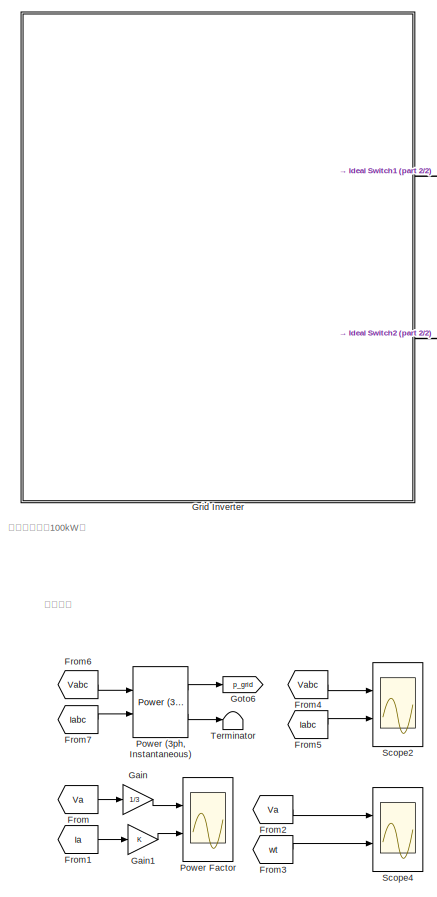
[diagram: root canvas - part 1/2, left side, full height]
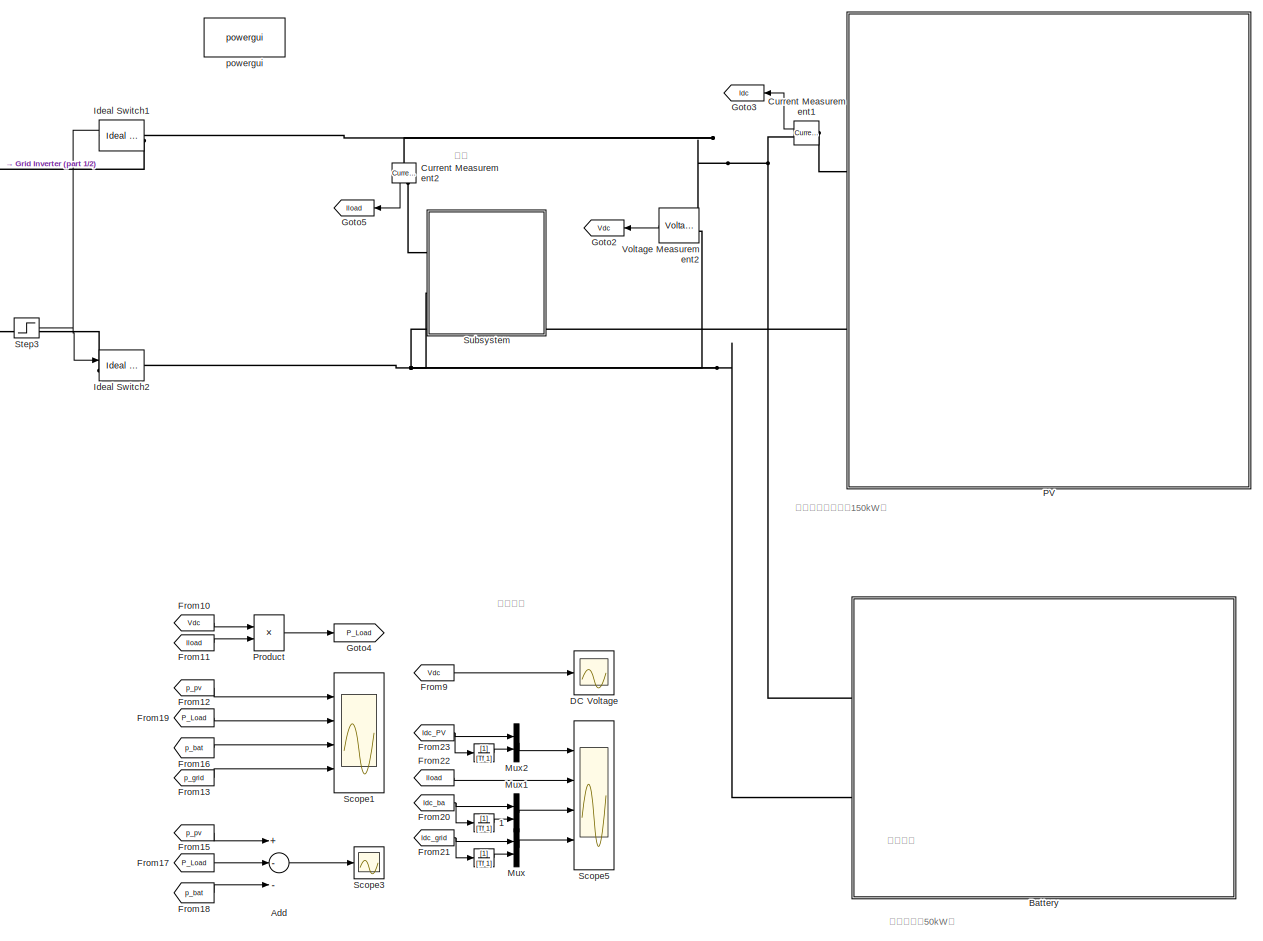
[diagram: root canvas - part 2/2, most of the canvas]
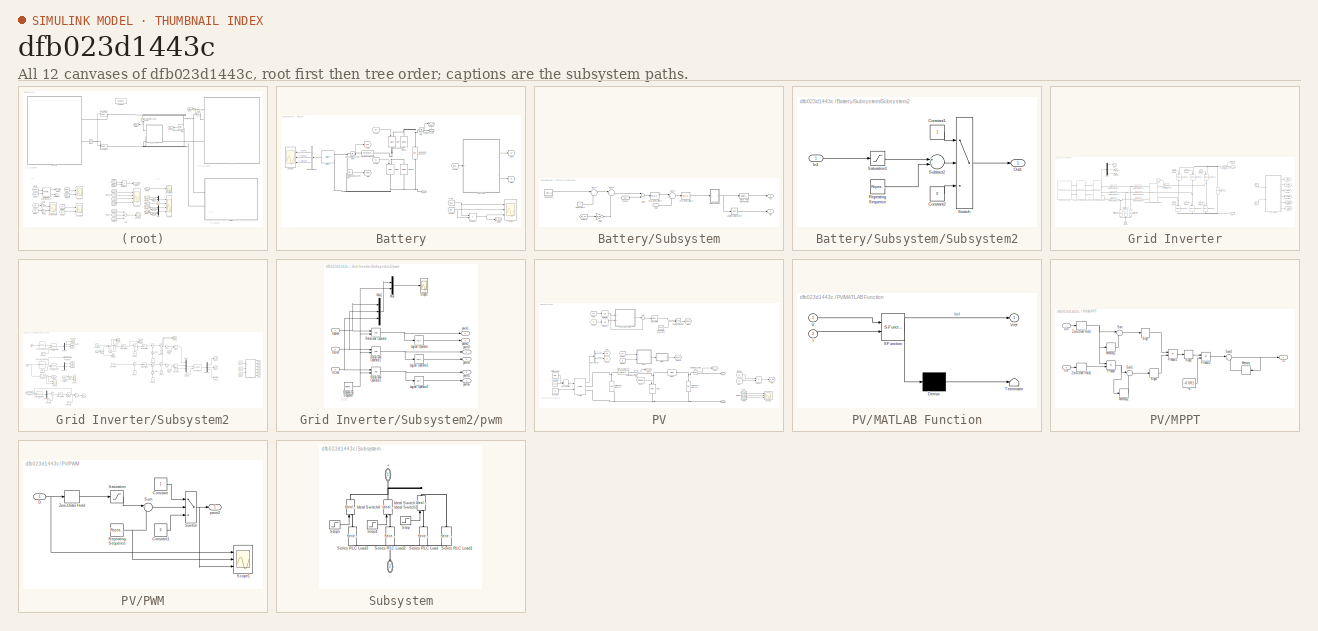
[diagram: thumbnail index - all 12 canvases of the model, root first then tree order]
MODEL slx_dfb023d1443c
KIND model
CONFIG AbsTol = auto
CONFIG EnableMultiTasking = off
CONFIG FixedStep = auto
CONFIG InitFcn = clear all;\n\nStep_time=2;  %并网转离网的切换时间\nTf=0.0159*0.25 %直流侧电流滤波常数\n\nVdc_H2=720;   %直流母线电压最大值\nVdc_H1=710;   %\nUdc=700;   %直流母线电压最大值\nVdc_L1=690;   \nVdc_L2=680;   %直流母线电压最小值\n\n%% 并网变流器部分 %%\nP_grid=100e3;  %变流器额定功率\nCg=3227e-6;   %直流母线电容\nP_grid=100e3;  %变流器额定功率\nIdc_max=145;   %直流侧最大输出电流\n%Rg=(720-700)/Idc_max;   %下垂系数\nRg=40*(Udc-40)/P_grid;   %下垂系数\nIgrid_max=72;   %并网逆变器最大充放电电流（交流侧）\n\n%% 蓄电池部分 %%\nP_ba=50e3; ...<+221ch>
CONFIG MaxStep = auto
CONFIG MinStep = auto
CONFIG RelTol = 1e-3
CONFIG SampleTimeConstraint = Unconstrained
CONFIG Solver = ode45
CONFIG SolverName = ode45
CONFIG StartTime = 0.0
CONFIG StopTime = 2
BLOCK [TransferFcn]  
  Denominator = [Tf 1]
BLOCK [TransferFcn]   
  Denominator = [Tf 1]
BLOCK [TransferFcn]  1
  Denominator = [Tf 1]
BLOCK [Sum] Add
  InputSameDT = off
  Inputs = +--
  OutDataTypeStr = Inherit: Inherit via internal rule
  Ports = [3, 1]
  SaturateOnIntegerOverflow = off
BLOCK [SubSystem] Battery
  Ports = [0, 0, 0, 0, 0, 2]
  RequestExecContextInheritance = off
BLOCK [PMIOPort] Battery/+
  Side = Left
BLOCK [PMIOPort] Battery/-
  Port = 2
  Side = Left
BLOCK [Reference] Battery/Battery  REF=electricdrivelib/Extra Sources/Battery
  Ports = [0, 1, 0, 0, 0, 2]
  SourceBlock = electricdrivelib/Extra Sources/Battery
  SourceProductBaseCode = PS
  SourceProductName = Simscape Power Systems
  SourceType = Battery
BLOCK [BusSelector] Battery/Bus Selector1
  OutputAsBus = off
  OutputSignals = SOC (%),Current (A),Voltage (V)
  Ports = [1, 3]
BLOCK [Reference] Battery/Current Measurement  REF=powerlib/Measurements/Current Measurement
  Ports = [0, 1, 0, 0, 0, 1, 1]
  SourceBlock = powerlib/Measurements/Current Measurement
  SourceProductBaseCode = PS
  SourceProductName = Simscape Power Systems
  SourceType = Current Measurement
  UserDataPersistent = on
BLOCK [Reference] Battery/Current Measurement3  REF=powerlib/Measurements/Current Measurement
  Ports = [0, 1, 0, 0, 0, 1, 1]
  SourceBlock = powerlib/Measurements/Current Measurement
  SourceProductBaseCode = PS
  SourceProductName = Simscape Power Systems
  SourceType = Current Measurement
  UserDataPersistent = on
BLOCK [Reference] Battery/Diode1  REF=powerlib/Power
Electronics/Diode
  Ports = [0, 0, 0, 0, 0, 1, 1]
  SourceBlock = powerlib/Power\nElectronics/Diode
  SourceProductBaseCode = PS
  SourceProductName = Simscape Power Systems
  SourceType = Diode
BLOCK [Reference] Battery/Diode3  REF=powerlib/Power
Electronics/Diode
  Ports = [0, 0, 0, 0, 0, 1, 1]
  SourceBlock = powerlib/Power\nElectronics/Diode
  SourceProductBaseCode = PS
  SourceProductName = Simscape Power Systems
  SourceType = Diode
BLOCK [From] Battery/From
  GotoTag = Vbat
BLOCK [From] Battery/From1
  GotoTag = Ibat
BLOCK [From] Battery/From3
  GotoTag = S2
  TagVisibility = global
BLOCK [From] Battery/From4
  GotoTag = S1
  TagVisibility = global
BLOCK [From] Battery/From6
  GotoTag = Ibat
BLOCK [Goto] Battery/Goto
  GotoTag = Vbat
BLOCK [Goto] Battery/Goto1
  GotoTag = S1
  TagVisibility = global
BLOCK [Goto] Battery/Goto10
  GotoTag = Idc_ba
  TagVisibility = global
BLOCK [Goto] Battery/Goto2
  GotoTag = Ibat
BLOCK [Goto] Battery/Goto3
  GotoTag = S2
  TagVisibility = global
BLOCK [Goto] Battery/Goto9
  GotoTag = p_bat
  TagVisibility = global
BLOCK [Reference] Battery/IGBT  REF=powerlib/Power
Electronics/IGBT
  Ports = [1, 0, 0, 0, 0, 1, 1]
  SourceBlock = powerlib/Power\nElectronics/IGBT
  SourceProductBaseCode = PS
  SourceProductName = Simscape Power Systems
  SourceType = IGBT
BLOCK [Reference] Battery/IGBT1  REF=powerlib/Power
Electronics/IGBT
  Ports = [1, 0, 0, 0, 0, 1, 1]
  SourceBlock = powerlib/Power\nElectronics/IGBT
  SourceProductBaseCode = PS
  SourceProductName = Simscape Power Systems
  SourceType = IGBT
BLOCK [Product] Battery/Product
  InputSameDT = off
  OutDataTypeStr = Inherit: Inherit via internal rule
  Ports = [2, 1]
  RndMeth = Floor
  SaturateOnIntegerOverflow = off
BLOCK [Scope] Battery/Scope
  Floating = off
  NumInputPorts = 3
  Ports = [3]
  ScopeSpecificationString = Simulink.scopes.TimeScopeBlockCfg('CurrentConfiguration', extmgr.ConfigurationSet(extmgr.Configuration('Core','General UI',true),extmgr.Configuration('Core','Source UI',true),extmgr.Configuration('Sources','WiredSimulink',true,'DataLoggingVariableName','ScopeData3'),extmgr.Configuration('Visuals','Time Domain',true,'SerializedDisplays',{struct('MinYLimReal','312.52844','MaxYLimReal','325.65875','Y...<+2815ch>
BLOCK [Scope] Battery/Scope2
  Floating = off
  NumInputPorts = 3
  Ports = [3]
  ScopeSpecificationString = Simulink.scopes.TimeScopeBlockCfg('CurrentConfiguration', extmgr.ConfigurationSet(extmgr.Configuration('Core','General UI',true),extmgr.Configuration('Core','Source UI',true),extmgr.Configuration('Sources','WiredSimulink',true,'DataLoggingVariableName','ScopeData3','DataLoggingSaveFormat','StructureWithTime','DataLoggingDecimation','1','DataLoggingDecimateData',true),extmgr.Configuration('Visuals'...<+3078ch>
BLOCK [Reference] Battery/Series RLC Branch  REF=powerlib/Elements/Series RLC Branch
  Ports = [0, 0, 0, 0, 0, 1, 1]
  SourceBlock = powerlib/Elements/Series RLC Branch
  SourceProductBaseCode = PS
  SourceProductName = Simscape Power Systems
  SourceType = Series RLC Branch
BLOCK [Reference] Battery/Series RLC Branch3  REF=powerlib/Elements/Series RLC Branch
  Ports = [0, 0, 0, 0, 0, 1, 1]
  SourceBlock = powerlib/Elements/Series RLC Branch
  SourceProductBaseCode = PS
  SourceProductName = Simscape Power Systems
  SourceType = Series RLC Branch
BLOCK [SubSystem] Battery/Subsystem
  Ports = [1, 2]
  RequestExecContextInheritance = off
BLOCK [Sum] Battery/Subsystem/Add3
  InputSameDT = off
  Inputs = +-
  OutDataTypeStr = Inherit: Inherit via internal rule
  Ports = [2, 1]
  SaturateOnIntegerOverflow = off
BLOCK [Constant] Battery/Subsystem/Constant1
  Value = Vdc_L1
BLOCK [Constant] Battery/Subsystem/Constant3
  Value = 0
BLOCK [DataTypeConversion] Battery/Subsystem/Data Type Conversion
  OutDataTypeStr = boolean
  RndMeth = Floor
  SaturateOnIntegerOverflow = off
BLOCK [From] Battery/Subsystem/From3
  GotoTag = Vdc
  TagVisibility = global
BLOCK [From] Battery/Subsystem/From5
  GotoTag = Idc_ba
  TagVisibility = global
BLOCK [Gain] Battery/Subsystem/Gain2
  Gain = R_ba
  OutDataTypeStr = Inherit: Inherit via internal rule
  ParamDataTypeStr = Inherit: Inherit via internal rule
  SaturateOnIntegerOverflow = off
BLOCK [Inport] Battery/Subsystem/Ibat
  IconDisplay = Port number
BLOCK [Logic] Battery/Subsystem/Logical Operator4
  AllPortsSameDT = off
  Operator = NOT
  OutDataTypeStr = boolean
  Ports = [1, 1]
BLOCK [Reference] Battery/Subsystem/PID Controller2  REF=simulink/Continuous/PID Controller
  Ports = [1, 1]
  SourceBlock = simulink/Continuous/PID Controller
  SourceProductBaseCode = SL
  SourceProductName = Simulink
  SourceType = PID 1dof
BLOCK [Reference] Battery/Subsystem/PID Controller4  REF=simulink/Continuous/PID Controller
  Ports = [1, 1]
  SourceBlock = simulink/Continuous/PID Controller
  SourceProductBaseCode = SL
  SourceProductName = Simulink
  SourceType = PID 1dof
BLOCK [Outport] Battery/Subsystem/S1
  IconDisplay = Port number
  Port = 2
BLOCK [Outport] Battery/Subsystem/S2
  IconDisplay = Port number
BLOCK [SubSystem] Battery/Subsystem/Subsystem2
  Ports = [1, 1]
  RequestExecContextInheritance = off
BLOCK [Constant] Battery/Subsystem/Subsystem2/Constant1
BLOCK [Constant] Battery/Subsystem/Subsystem2/Constant2
  Value = 0
BLOCK [Inport] Battery/Subsystem/Subsystem2/In1
  IconDisplay = Port number
BLOCK [Outport] Battery/Subsystem/Subsystem2/Out1
  IconDisplay = Port number
BLOCK [Reference] Battery/Subsystem/Subsystem2/Repeating Sequence  REF=simulink/Sources/Repeating
Sequence
  Ports = [0, 1]
  SourceBlock = simulink/Sources/Repeating\nSequence
  SourceProductBaseCode = SL
  SourceProductName = Simulink
  SourceType = Repeating table
BLOCK [Saturate] Battery/Subsystem/Subsystem2/Saturation1
  InputPortMap = u0
  LowerLimit = -1
  Ports = [1, 1]
  UpperLimit = 1
BLOCK [Sum] Battery/Subsystem/Subsystem2/Subtract2
  InputSameDT = off
  Inputs = +-
  OutDataTypeStr = Inherit: Inherit via internal rule
  Ports = [2, 1]
  SaturateOnIntegerOverflow = off
BLOCK [Switch] Battery/Subsystem/Subsystem2/Switch
  InputSameDT = off
  SaturateOnIntegerOverflow = off
BLOCK [Sum] Battery/Subsystem/Sum2
  IconShape = round
  InputSameDT = off
  Inputs = |+-
  OutDataTypeStr = Inherit: Inherit via internal rule
  Ports = [2, 1]
  SaturateOnIntegerOverflow = off
BLOCK [Sum] Battery/Subsystem/Sum4
  IconShape = round
  InputSameDT = off
  Inputs = |+-
  OutDataTypeStr = Inherit: Inherit via internal rule
  Ports = [2, 1]
  SaturateOnIntegerOverflow = off
BLOCK [Sum] Battery/Subsystem/Sum6
  IconShape = round
  InputSameDT = off
  Inputs = |+-
  OutDataTypeStr = Inherit: Inherit via internal rule
  Ports = [2, 1]
  SaturateOnIntegerOverflow = off
BLOCK [Reference] Battery/Voltage Measurement  REF=powerlib/Measurements/Voltage Measurement
  Ports = [0, 1, 0, 0, 0, 2]
  SourceBlock = powerlib/Measurements/Voltage Measurement
  SourceProductBaseCode = PS
  SourceProductName = Simscape Power Systems
  SourceType = Voltage Measurement
  UserDataPersistent = on
BLOCK [Reference] Current Measurement1  REF=powerlib/Measurements/Current Measurement
  Ports = [0, 1, 0, 0, 0, 1, 1]
  SourceBlock = powerlib/Measurements/Current Measurement
  SourceProductBaseCode = PS
  SourceProductName = Simscape Power Systems
  SourceType = Current Measurement
  UserDataPersistent = on
BLOCK [Reference] Current Measurement2  REF=powerlib/Measurements/Current Measurement
  Ports = [0, 1, 0, 0, 0, 1, 1]
  SourceBlock = powerlib/Measurements/Current Measurement
  SourceProductBaseCode = PS
  SourceProductName = Simscape Power Systems
  SourceType = Current Measurement
  UserDataPersistent = on
BLOCK [Scope] DC Voltage
  Floating = off
  NumInputPorts = 1
  Ports = [1]
  ScopeSpecificationString = Simulink.scopes.TimeScopeBlockCfg('CurrentConfiguration', extmgr.ConfigurationSet(extmgr.Configuration('Core','General UI',true,'FigureColor',[1 1 1]),extmgr.Configuration('Core','Source UI',true),extmgr.Configuration('Sources','WiredSimulink',true,'DataLoggingVariableName','ScopeData2'),extmgr.Configuration('Visuals','Time Domain',true,'SerializedDisplays',{struct('MinYLimReal','-94.49034','MaxYL...<+1637ch>
BLOCK [From] From
  GotoTag = Va
  TagVisibility = global
BLOCK [From] From1
  GotoTag = Ia
  TagVisibility = global
BLOCK [From] From10
  GotoTag = Vdc
  TagVisibility = global
BLOCK [From] From11
  GotoTag = Iload
  TagVisibility = global
BLOCK [From] From12
  GotoTag = p_pv
  TagVisibility = global
BLOCK [From] From13
  GotoTag = p_grid
BLOCK [From] From15
  GotoTag = p_pv
  TagVisibility = global
BLOCK [From] From16
  GotoTag = p_bat
  TagVisibility = global
BLOCK [From] From17
  GotoTag = P_Load
  TagVisibility = global
BLOCK [From] From18
  GotoTag = p_bat
  TagVisibility = global
BLOCK [From] From19
  GotoTag = P_Load
  TagVisibility = global
BLOCK [From] From2
  GotoTag = Va
  TagVisibility = global
BLOCK [From] From20
  GotoTag = Idc_ba
  TagVisibility = global
BLOCK [From] From21
  GotoTag = Idc_grid
  TagVisibility = global
BLOCK [From] From22
  GotoTag = Iload
  TagVisibility = global
BLOCK [From] From23
  GotoTag = Idc_PV
  TagVisibility = global
BLOCK [From] From3
  GotoTag = wt
  TagVisibility = global
BLOCK [From] From4
  GotoTag = Vabc
  TagVisibility = global
BLOCK [From] From5
  GotoTag = Iabc
  TagVisibility = global
BLOCK [From] From6
  GotoTag = Vabc
  TagVisibility = global
BLOCK [From] From7
  GotoTag = Iabc
  TagVisibility = global
BLOCK [From] From9
  GotoTag = Vdc
  TagVisibility = global
BLOCK [Gain] Gain
  Gain = 1/3
  OutDataTypeStr = Inherit: Inherit via internal rule
  ParamDataTypeStr = Inherit: Inherit via internal rule
  SaturateOnIntegerOverflow = off
BLOCK [Gain] Gain1
  OutDataTypeStr = Inherit: Inherit via internal rule
  ParamDataTypeStr = Inherit: Inherit via internal rule
  SaturateOnIntegerOverflow = off
BLOCK [Goto] Goto2
  GotoTag = Vdc
  TagVisibility = global
BLOCK [Goto] Goto3
  GotoTag = Idc
  TagVisibility = global
BLOCK [Goto] Goto4
  GotoTag = P_Load
  TagVisibility = global
BLOCK [Goto] Goto5
  GotoTag = Iload
  TagVisibility = global
BLOCK [Goto] Goto6
  GotoTag = p_grid
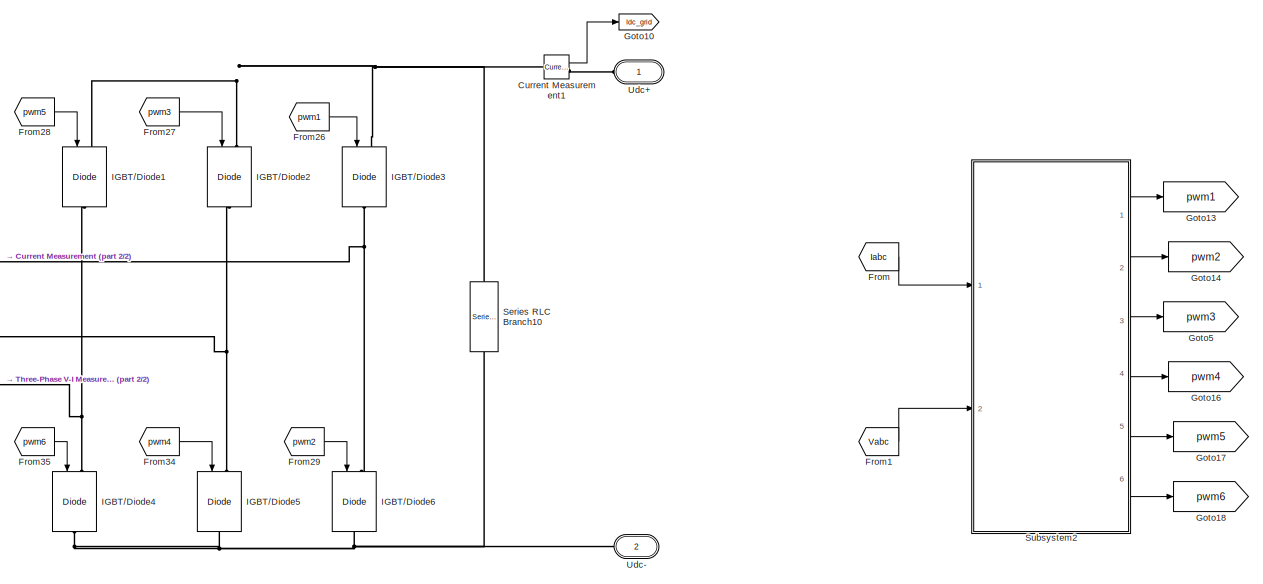
[diagram: Grid Inverter - part 1/2, right side, full height]
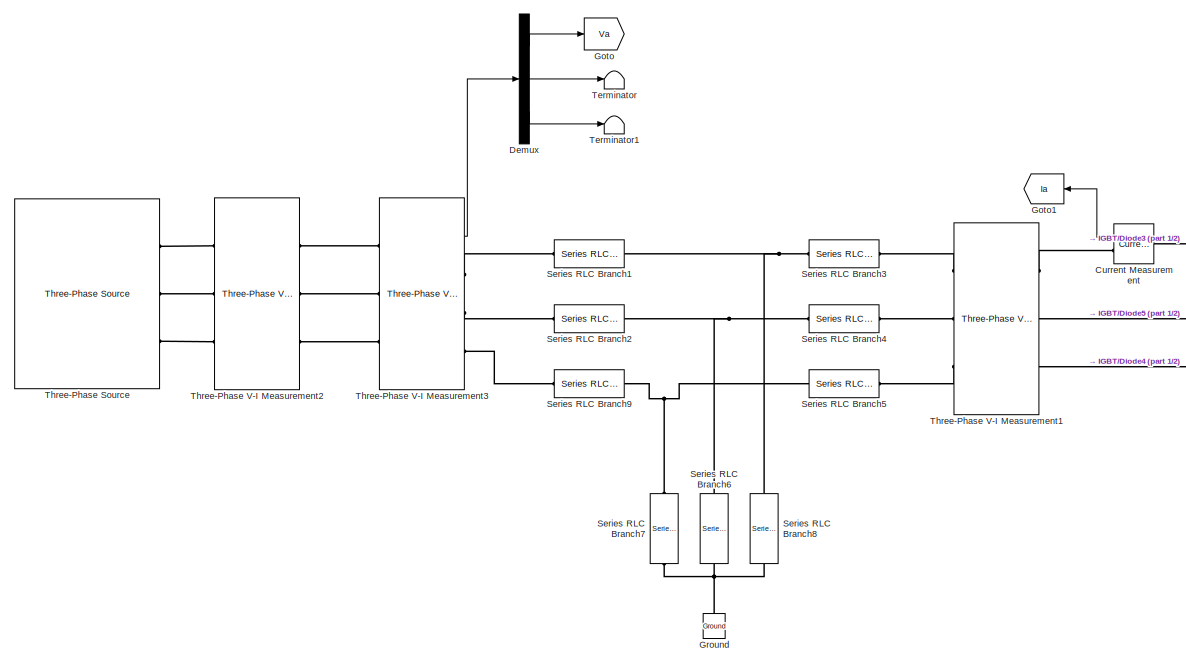
[diagram: Grid Inverter - part 2/2, left side, full height]
BLOCK [SubSystem] Grid Inverter
  Ports = [0, 0, 0, 0, 0, 2]
  RequestExecContextInheritance = off
BLOCK [Reference] Grid Inverter/Current Measurement  REF=powerlib/Measurements/Current Measurement
  Ports = [0, 1, 0, 0, 0, 1, 1]
  SourceBlock = powerlib/Measurements/Current Measurement
  SourceProductBaseCode = PS
  SourceProductName = Simscape Power Systems
  SourceType = Current Measurement
  UserDataPersistent = on
BLOCK [Reference] Grid Inverter/Current Measurement1  REF=powerlib/Measurements/Current Measurement
  Ports = [0, 1, 0, 0, 0, 1, 1]
  SourceBlock = powerlib/Measurements/Current Measurement
  SourceProductBaseCode = PS
  SourceProductName = Simscape Power Systems
  SourceType = Current Measurement
  UserDataPersistent = on
BLOCK [Demux] Grid Inverter/Demux
  DisplayOption = bar
  Outputs = 3
  Ports = [1, 3]
BLOCK [From] Grid Inverter/From
  GotoTag = Iabc
  TagVisibility = global
BLOCK [From] Grid Inverter/From1
  GotoTag = Vabc
  TagVisibility = global
BLOCK [From] Grid Inverter/From26
  GotoTag = pwm1
  TagVisibility = global
BLOCK [From] Grid Inverter/From27
  GotoTag = pwm3
  TagVisibility = global
BLOCK [From] Grid Inverter/From28
  GotoTag = pwm5
  TagVisibility = global
BLOCK [From] Grid Inverter/From29
  GotoTag = pwm2
  TagVisibility = global
BLOCK [From] Grid Inverter/From34
  GotoTag = pwm4
  TagVisibility = global
BLOCK [From] Grid Inverter/From35
  GotoTag = pwm6
  TagVisibility = global
BLOCK [Goto] Grid Inverter/Goto
  GotoTag = Va
  TagVisibility = global
BLOCK [Goto] Grid Inverter/Goto1
  GotoTag = Ia
  TagVisibility = global
BLOCK [Goto] Grid Inverter/Goto10
  GotoTag = Idc_grid
  TagVisibility = global
BLOCK [Goto] Grid Inverter/Goto13
  GotoTag = pwm1
  TagVisibility = global
BLOCK [Goto] Grid Inverter/Goto14
  GotoTag = pwm2
  TagVisibility = global
BLOCK [Goto] Grid Inverter/Goto16
  GotoTag = pwm4
  TagVisibility = global
BLOCK [Goto] Grid Inverter/Goto17
  GotoTag = pwm5
  TagVisibility = global
BLOCK [Goto] Grid Inverter/Goto18
  GotoTag = pwm6
  TagVisibility = global
BLOCK [Goto] Grid Inverter/Goto5
  GotoTag = pwm3
  TagVisibility = global
BLOCK [Reference] Grid Inverter/Ground  REF=powerlib/Elements/Ground
  Ports = [0, 0, 0, 0, 0, 1]
  SourceBlock = powerlib/Elements/Ground
  SourceProductBaseCode = PS
  SourceProductName = Simscape Power Systems
  SourceType = Ground
BLOCK [Reference] Grid Inverter/IGBT//Diode1  REF=powerlib/Power
Electronics/IGBT//Diode
  Ports = [1, 0, 0, 0, 0, 1, 1]
  SourceBlock = powerlib/Power\nElectronics/IGBT//Diode
  SourceProductBaseCode = PS
  SourceProductName = Simscape Power Systems
  SourceType = IGBT/Diode
BLOCK [Reference] Grid Inverter/IGBT//Diode2  REF=powerlib/Power
Electronics/IGBT//Diode
  Ports = [1, 0, 0, 0, 0, 1, 1]
  SourceBlock = powerlib/Power\nElectronics/IGBT//Diode
  SourceProductBaseCode = PS
  SourceProductName = Simscape Power Systems
  SourceType = IGBT/Diode
BLOCK [Reference] Grid Inverter/IGBT//Diode3  REF=powerlib/Power
Electronics/IGBT//Diode
  Ports = [1, 0, 0, 0, 0, 1, 1]
  SourceBlock = powerlib/Power\nElectronics/IGBT//Diode
  SourceProductBaseCode = PS
  SourceProductName = Simscape Power Systems
  SourceType = IGBT/Diode
BLOCK [Reference] Grid Inverter/IGBT//Diode4  REF=powerlib/Power
Electronics/IGBT//Diode
  Ports = [1, 0, 0, 0, 0, 1, 1]
  SourceBlock = powerlib/Power\nElectronics/IGBT//Diode
  SourceProductBaseCode = PS
  SourceProductName = Simscape Power Systems
  SourceType = IGBT/Diode
BLOCK [Reference] Grid Inverter/IGBT//Diode5  REF=powerlib/Power
Electronics/IGBT//Diode
  Ports = [1, 0, 0, 0, 0, 1, 1]
  SourceBlock = powerlib/Power\nElectronics/IGBT//Diode
  SourceProductBaseCode = PS
  SourceProductName = Simscape Power Systems
  SourceType = IGBT/Diode
BLOCK [Reference] Grid Inverter/IGBT//Diode6  REF=powerlib/Power
Electronics/IGBT//Diode
  Ports = [1, 0, 0, 0, 0, 1, 1]
  SourceBlock = powerlib/Power\nElectronics/IGBT//Diode
  SourceProductBaseCode = PS
  SourceProductName = Simscape Power Systems
  SourceType = IGBT/Diode
BLOCK [Reference] Grid Inverter/Series RLC Branch1  REF=powerlib/Elements/Series RLC Branch
  Ports = [0, 0, 0, 0, 0, 1, 1]
  SourceBlock = powerlib/Elements/Series RLC Branch
  SourceProductBaseCode = PS
  SourceProductName = Simscape Power Systems
  SourceType = Series RLC Branch
BLOCK [Reference] Grid Inverter/Series RLC Branch10  REF=powerlib/Elements/Series RLC Branch
  Ports = [0, 0, 0, 0, 0, 1, 1]
  SourceBlock = powerlib/Elements/Series RLC Branch
  SourceProductBaseCode = PS
  SourceProductName = Simscape Power Systems
  SourceType = Series RLC Branch
BLOCK [Reference] Grid Inverter/Series RLC Branch2  REF=powerlib/Elements/Series RLC Branch
  Ports = [0, 0, 0, 0, 0, 1, 1]
  SourceBlock = powerlib/Elements/Series RLC Branch
  SourceProductBaseCode = PS
  SourceProductName = Simscape Power Systems
  SourceType = Series RLC Branch
BLOCK [Reference] Grid Inverter/Series RLC Branch3  REF=powerlib/Elements/Series RLC Branch
  Ports = [0, 0, 0, 0, 0, 1, 1]
  SourceBlock = powerlib/Elements/Series RLC Branch
  SourceProductBaseCode = PS
  SourceProductName = Simscape Power Systems
  SourceType = Series RLC Branch
BLOCK [Reference] Grid Inverter/Series RLC Branch4  REF=powerlib/Elements/Series RLC Branch
  Ports = [0, 0, 0, 0, 0, 1, 1]
  SourceBlock = powerlib/Elements/Series RLC Branch
  SourceProductBaseCode = PS
  SourceProductName = Simscape Power Systems
  SourceType = Series RLC Branch
BLOCK [Reference] Grid Inverter/Series RLC Branch5  REF=powerlib/Elements/Series RLC Branch
  Ports = [0, 0, 0, 0, 0, 1, 1]
  SourceBlock = powerlib/Elements/Series RLC Branch
  SourceProductBaseCode = PS
  SourceProductName = Simscape Power Systems
  SourceType = Series RLC Branch
BLOCK [Reference] Grid Inverter/Series RLC Branch6  REF=powerlib/Elements/Series RLC Branch
  Ports = [0, 0, 0, 0, 0, 1, 1]
  SourceBlock = powerlib/Elements/Series RLC Branch
  SourceProductBaseCode = PS
  SourceProductName = Simscape Power Systems
  SourceType = Series RLC Branch
BLOCK [Reference] Grid Inverter/Series RLC Branch7  REF=powerlib/Elements/Series RLC Branch
  Ports = [0, 0, 0, 0, 0, 1, 1]
  SourceBlock = powerlib/Elements/Series RLC Branch
  SourceProductBaseCode = PS
  SourceProductName = Simscape Power Systems
  SourceType = Series RLC Branch
BLOCK [Reference] Grid Inverter/Series RLC Branch8  REF=powerlib/Elements/Series RLC Branch
  Ports = [0, 0, 0, 0, 0, 1, 1]
  SourceBlock = powerlib/Elements/Series RLC Branch
  SourceProductBaseCode = PS
  SourceProductName = Simscape Power Systems
  SourceType = Series RLC Branch
BLOCK [Reference] Grid Inverter/Series RLC Branch9  REF=powerlib/Elements/Series RLC Branch
  Ports = [0, 0, 0, 0, 0, 1, 1]
  SourceBlock = powerlib/Elements/Series RLC Branch
  SourceProductBaseCode = PS
  SourceProductName = Simscape Power Systems
  SourceType = Series RLC Branch
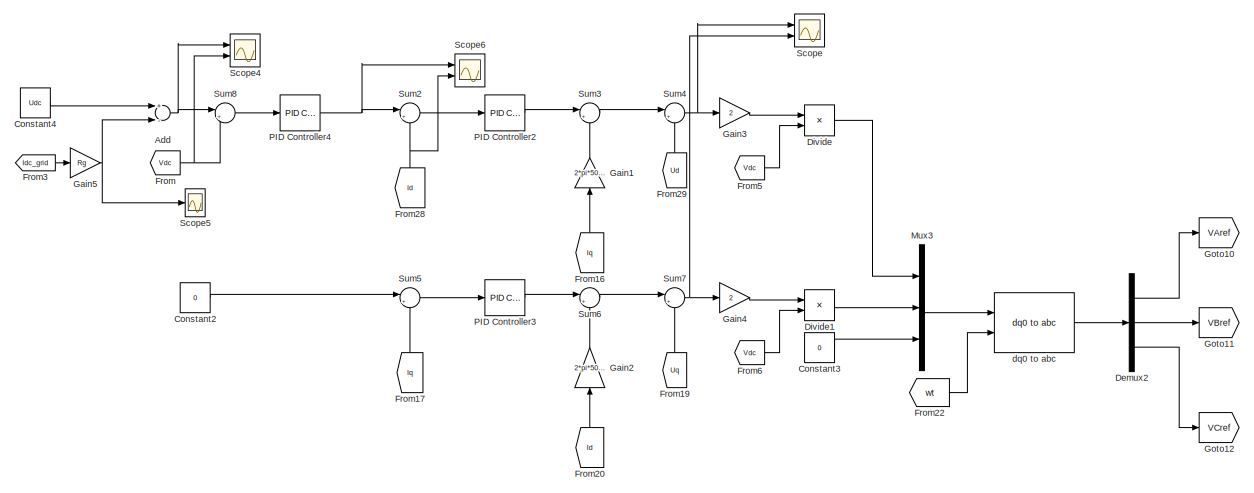
[diagram: Grid Inverter/Subsystem2 - part 1/3, central region]
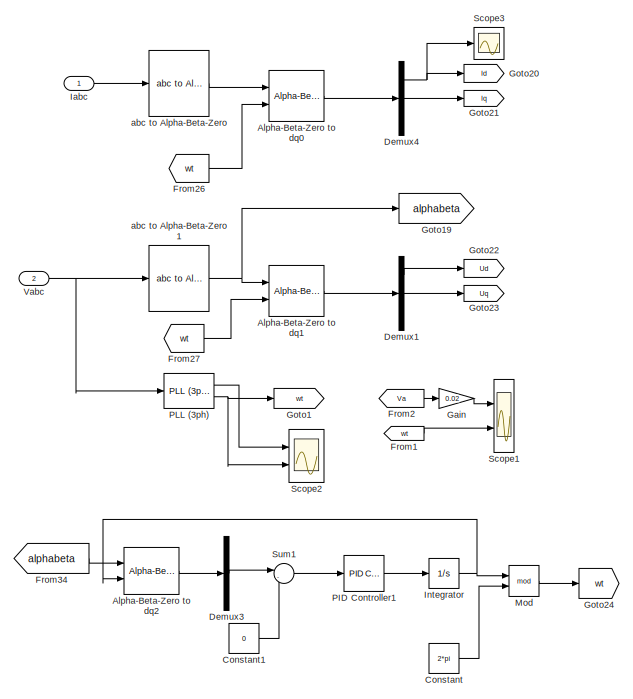
[diagram: Grid Inverter/Subsystem2 - part 2/3, left side, full height]
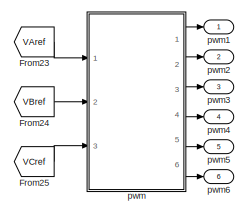
[diagram: Grid Inverter/Subsystem2 - part 3/3, middle right region]
BLOCK [SubSystem] Grid Inverter/Subsystem2
  Ports = [2, 6]
  RequestExecContextInheritance = off
BLOCK [Sum] Grid Inverter/Subsystem2/Add
  InputSameDT = off
  Inputs = +-
  OutDataTypeStr = Inherit: Inherit via internal rule
  Ports = [2, 1]
  SaturateOnIntegerOverflow = off
BLOCK [Reference] Grid Inverter/Subsystem2/Alpha-Beta-Zero to dq0  REF=powerlib_meascontrol/Transformations/Alpha-Beta-Zero
to dq0
  Ports = [2, 1]
  SourceBlock = powerlib_meascontrol/Transformations/Alpha-Beta-Zero\nto dq0
  SourceProductBaseCode = PS
  SourceProductName = Simscape Power Systems
  SourceType = Alpha-Beta-Zero to dq0 Transformation
BLOCK [Reference] Grid Inverter/Subsystem2/Alpha-Beta-Zero to dq1  REF=powerlib_meascontrol/Transformations/Alpha-Beta-Zero
to dq0
  Ports = [2, 1]
  SourceBlock = powerlib_meascontrol/Transformations/Alpha-Beta-Zero\nto dq0
  SourceProductBaseCode = PS
  SourceProductName = Simscape Power Systems
  SourceType = Alpha-Beta-Zero to dq0 Transformation
BLOCK [Reference] Grid Inverter/Subsystem2/Alpha-Beta-Zero to dq2  REF=powerlib_meascontrol/Transformations/Alpha-Beta-Zero
to dq0
  Ports = [2, 1]
  SourceBlock = powerlib_meascontrol/Transformations/Alpha-Beta-Zero\nto dq0
  SourceProductBaseCode = PS
  SourceProductName = Simscape Power Systems
  SourceType = Alpha-Beta-Zero to dq0 Transformation
BLOCK [Constant] Grid Inverter/Subsystem2/Constant
  Value = 2*pi
BLOCK [Constant] Grid Inverter/Subsystem2/Constant1
  Value = 0
BLOCK [Constant] Grid Inverter/Subsystem2/Constant2
  Value = 0
BLOCK [Constant] Grid Inverter/Subsystem2/Constant3
  Value = 0
BLOCK [Constant] Grid Inverter/Subsystem2/Constant4
  Value = Udc
BLOCK [Demux] Grid Inverter/Subsystem2/Demux1
  DisplayOption = bar
  Outputs = 3
  Ports = [1, 3]
BLOCK [Demux] Grid Inverter/Subsystem2/Demux2
  DisplayOption = bar
  Outputs = 3
  Ports = [1, 3]
BLOCK [Demux] Grid Inverter/Subsystem2/Demux3
  DisplayOption = bar
  Outputs = 3
  Ports = [1, 3]
BLOCK [Demux] Grid Inverter/Subsystem2/Demux4
  DisplayOption = bar
  Outputs = 3
  Ports = [1, 3]
BLOCK [Product] Grid Inverter/Subsystem2/Divide
  InputSameDT = off
  Inputs = */
  OutDataTypeStr = Inherit: Inherit via internal rule
  Ports = [2, 1]
  RndMeth = Floor
  SaturateOnIntegerOverflow = off
BLOCK [Product] Grid Inverter/Subsystem2/Divide1
  InputSameDT = off
  Inputs = */
  OutDataTypeStr = Inherit: Inherit via internal rule
  Ports = [2, 1]
  RndMeth = Floor
  SaturateOnIntegerOverflow = off
BLOCK [From] Grid Inverter/Subsystem2/From
  GotoTag = Vdc
  TagVisibility = global
BLOCK [From] Grid Inverter/Subsystem2/From1
  GotoTag = wt
  TagVisibility = global
BLOCK [From] Grid Inverter/Subsystem2/From16
  GotoTag = Iq
  TagVisibility = global
BLOCK [From] Grid Inverter/Subsystem2/From17
  GotoTag = Iq
  TagVisibility = global
BLOCK [From] Grid Inverter/Subsystem2/From19
  GotoTag = Uq
  TagVisibility = global
BLOCK [From] Grid Inverter/Subsystem2/From2
  GotoTag = Va
  TagVisibility = global
BLOCK [From] Grid Inverter/Subsystem2/From20
  GotoTag = Id
  TagVisibility = global
BLOCK [From] Grid Inverter/Subsystem2/From22
  GotoTag = wt
  TagVisibility = global
BLOCK [From] Grid Inverter/Subsystem2/From23
  GotoTag = VAref
  TagVisibility = global
BLOCK [From] Grid Inverter/Subsystem2/From24
  GotoTag = VBref
  TagVisibility = global
BLOCK [From] Grid Inverter/Subsystem2/From25
  GotoTag = VCref
  TagVisibility = global
BLOCK [From] Grid Inverter/Subsystem2/From26
  GotoTag = wt
  TagVisibility = global
BLOCK [From] Grid Inverter/Subsystem2/From27
  GotoTag = wt
  TagVisibility = global
BLOCK [From] Grid Inverter/Subsystem2/From28
  GotoTag = Id
  TagVisibility = global
BLOCK [From] Grid Inverter/Subsystem2/From29
  GotoTag = Ud
  TagVisibility = global
BLOCK [From] Grid Inverter/Subsystem2/From3
  GotoTag = Idc_grid
  TagVisibility = global
BLOCK [From] Grid Inverter/Subsystem2/From34
  GotoTag = alphabeta
  TagVisibility = global
BLOCK [From] Grid Inverter/Subsystem2/From5
  GotoTag = Vdc
  TagVisibility = global
BLOCK [From] Grid Inverter/Subsystem2/From6
  GotoTag = Vdc
  TagVisibility = global
BLOCK [Gain] Grid Inverter/Subsystem2/Gain
  Gain = 0.02
  OutDataTypeStr = Inherit: Inherit via internal rule
  ParamDataTypeStr = Inherit: Inherit via internal rule
  SaturateOnIntegerOverflow = off
BLOCK [Gain] Grid Inverter/Subsystem2/Gain1
  Gain = 2*pi*50*1e-3
  OutDataTypeStr = Inherit: Inherit via internal rule
  ParamDataTypeStr = Inherit: Inherit via internal rule
  SaturateOnIntegerOverflow = off
BLOCK [Gain] Grid Inverter/Subsystem2/Gain2
  Gain = 2*pi*50*1e-3
  OutDataTypeStr = Inherit: Inherit via internal rule
  ParamDataTypeStr = Inherit: Inherit via internal rule
  SaturateOnIntegerOverflow = off
BLOCK [Gain] Grid Inverter/Subsystem2/Gain3
  Gain = 2
  OutDataTypeStr = Inherit: Inherit via internal rule
  ParamDataTypeStr = Inherit: Inherit via internal rule
  SaturateOnIntegerOverflow = off
BLOCK [Gain] Grid Inverter/Subsystem2/Gain4
  Gain = 2
  OutDataTypeStr = Inherit: Inherit via internal rule
  ParamDataTypeStr = Inherit: Inherit via internal rule
  SaturateOnIntegerOverflow = off
BLOCK [Gain] Grid Inverter/Subsystem2/Gain5
  Gain = Rg
  OutDataTypeStr = Inherit: Inherit via internal rule
  ParamDataTypeStr = Inherit: Inherit via internal rule
  SaturateOnIntegerOverflow = off
BLOCK [Goto] Grid Inverter/Subsystem2/Goto1
  Commented = on
  GotoTag = wt
  TagVisibility = global
BLOCK [Goto] Grid Inverter/Subsystem2/Goto10
  GotoTag = VAref
  TagVisibility = global
BLOCK [Goto] Grid Inverter/Subsystem2/Goto11
  GotoTag = VBref
  TagVisibility = global
BLOCK [Goto] Grid Inverter/Subsystem2/Goto12
  GotoTag = VCref
  TagVisibility = global
BLOCK [Goto] Grid Inverter/Subsystem2/Goto19
  GotoTag = alphabeta
  TagVisibility = global
BLOCK [Goto] Grid Inverter/Subsystem2/Goto20
  GotoTag = Id
  TagVisibility = global
BLOCK [Goto] Grid Inverter/Subsystem2/Goto21
  GotoTag = Iq
  TagVisibility = global
BLOCK [Goto] Grid Inverter/Subsystem2/Goto22
  GotoTag = Ud
  TagVisibility = global
BLOCK [Goto] Grid Inverter/Subsystem2/Goto23
  GotoTag = Uq
  TagVisibility = global
BLOCK [Goto] Grid Inverter/Subsystem2/Goto24
  GotoTag = wt
  TagVisibility = global
BLOCK [Inport] Grid Inverter/Subsystem2/Iabc
  IconDisplay = Port number
BLOCK [Integrator] Grid Inverter/Subsystem2/Integrator
  Ports = [1, 1]
BLOCK [Math] Grid Inverter/Subsystem2/Mod
  Operator = mod
  Ports = [2, 1]
BLOCK [Mux] Grid Inverter/Subsystem2/Mux3
  DisplayOption = bar
  Inputs = 3
  Ports = [3, 1]
BLOCK [Reference] Grid Inverter/Subsystem2/PID Controller1  REF=simulink/Continuous/PID Controller
  Ports = [1, 1]
  SourceBlock = simulink/Continuous/PID Controller
  SourceProductBaseCode = SL
  SourceProductName = Simulink
  SourceType = PID 1dof
BLOCK [Reference] Grid Inverter/Subsystem2/PID Controller2  REF=simulink/Continuous/PID Controller
  Ports = [1, 1]
  SourceBlock = simulink/Continuous/PID Controller
  SourceProductBaseCode = SL
  SourceProductName = Simulink
  SourceType = PID 1dof
BLOCK [Reference] Grid Inverter/Subsystem2/PID Controller3  REF=simulink/Continuous/PID Controller
  Ports = [1, 1]
  SourceBlock = simulink/Continuous/PID Controller
  SourceProductBaseCode = SL
  SourceProductName = Simulink
  SourceType = PID 1dof
BLOCK [Reference] Grid Inverter/Subsystem2/PID Controller4  REF=simulink/Continuous/PID Controller
  Ports = [1, 1]
  SourceBlock = simulink/Continuous/PID Controller
  SourceProductBaseCode = SL
  SourceProductName = Simulink
  SourceType = PID 1dof
BLOCK [Reference] Grid Inverter/Subsystem2/PLL (3ph)  REF=powerlib_meascontrol/PLL/PLL
(3ph)
  Commented = on
  Ports = [1, 2]
  SourceBlock = powerlib_meascontrol/PLL/PLL\n(3ph)
  SourceProductBaseCode = PS
  SourceProductName = Simscape Power Systems
  SourceType = PLL (3ph)
BLOCK [Scope] Grid Inverter/Subsystem2/Scope
  Floating = off
  NumInputPorts = 2
  Ports = [2]
  ScopeSpecificationString = Simulink.scopes.TimeScopeBlockCfg('CurrentConfiguration', extmgr.ConfigurationSet(extmgr.Configuration('Core','General UI',true),extmgr.Configuration('Core','Source UI',true),extmgr.Configuration('Sources','WiredSimulink',true,'DataLoggingVariableName','ScopeData1'),extmgr.Configuration('Visuals','Time Domain',true,'SerializedDisplays',{struct('MinYLimReal','-602.15165','MaxYLimReal','51.76637','Y...<+1482ch>
BLOCK [Scope] Grid Inverter/Subsystem2/Scope1
  Floating = off
  NumInputPorts = 2
  Ports = [2]
  ScopeSpecificationString = Simulink.scopes.TimeScopeBlockCfg('CurrentConfiguration', extmgr.ConfigurationSet(extmgr.Configuration('Core','General UI',true),extmgr.Configuration('Core','Source UI',true),extmgr.Configuration('Sources','WiredSimulink',true,'DataLoggingVariableName','ScopeData1'),extmgr.Configuration('Visuals','Time Domain',true,'SerializedDisplays',{struct('MinYLimReal','-7.76644','MaxYLimReal','7.84425','YLab...<+1556ch>
BLOCK [Scope] Grid Inverter/Subsystem2/Scope2
  Commented = on
  Floating = off
  NumInputPorts = 2
  Ports = [2]
  ScopeSpecificationString = Simulink.scopes.TimeScopeBlockCfg('CurrentConfiguration', extmgr.ConfigurationSet(extmgr.Configuration('Core','General UI',true),extmgr.Configuration('Core','Source UI',true),extmgr.Configuration('Sources','WiredSimulink',true,'DataLoggingVariableName','ScopeData2'),extmgr.Configuration('Visuals','Time Domain',true,'SerializedDisplays',{struct('MinYLimReal','-7.72406','MaxYLimReal','69.51655','YLa...<+1575ch>
BLOCK [Scope] Grid Inverter/Subsystem2/Scope3
  Floating = off
  NumInputPorts = 1
  Ports = [1]
  ScopeSpecificationString = Simulink.scopes.TimeScopeBlockCfg('CurrentConfiguration', extmgr.ConfigurationSet(extmgr.Configuration('Core','General UI',true),extmgr.Configuration('Core','Source UI',true),extmgr.Configuration('Sources','WiredSimulink',true,'DataLoggingVariableName','ScopeData3'),extmgr.Configuration('Visuals','Time Domain',true,'SerializedDisplays',{struct('MinYLimReal','-232.45893','MaxYLimReal','782.24593','...<+1518ch>
BLOCK [Scope] Grid Inverter/Subsystem2/Scope4
  Floating = off
  NumInputPorts = 2
  Ports = [2]
  ScopeSpecificationString = Simulink.scopes.TimeScopeBlockCfg('CurrentConfiguration', extmgr.ConfigurationSet(extmgr.Configuration('Core','General UI',true,'FigureColor',[1 1 1]),extmgr.Configuration('Core','Source UI',true),extmgr.Configuration('Sources','WiredSimulink',true,'DataLoggingVariableName','ScopeData2'),extmgr.Configuration('Visuals','Time Domain',true,'SerializedDisplays',{struct('MinYLimReal','-93.79235','MaxYL...<+1750ch>
BLOCK [Scope] Grid Inverter/Subsystem2/Scope5
  Floating = off
  NumInputPorts = 1
  Ports = [1]
  ScopeSpecificationString = Simulink.scopes.TimeScopeBlockCfg('CurrentConfiguration', extmgr.ConfigurationSet(extmgr.Configuration('Core','General UI',true),extmgr.Configuration('Core','Source UI',true),extmgr.Configuration('Sources','WiredSimulink',true,'DataLoggingVariableName','ScopeData1'),extmgr.Configuration('Visuals','Time Domain',true,'SerializedDisplays',{struct('MinYLimReal','-61.26779','MaxYLimReal','102.38861','Y...<+1465ch>
BLOCK [Scope] Grid Inverter/Subsystem2/Scope6
  Floating = off
  NumInputPorts = 2
  Ports = [2]
  ScopeSpecificationString = Simulink.scopes.TimeScopeBlockCfg('CurrentConfiguration', extmgr.ConfigurationSet(extmgr.Configuration('Core','General UI',true),extmgr.Configuration('Core','Source UI',true),extmgr.Configuration('Sources','WiredSimulink',true,'DataLoggingVariableName','ScopeData2'),extmgr.Configuration('Visuals','Time Domain',true,'SerializedDisplays',{struct('MinYLimReal','-58.41795','MaxYLimReal','86.49088','YL...<+2103ch>
BLOCK [Sum] Grid Inverter/Subsystem2/Sum1
  IconShape = round
  InputSameDT = off
  Inputs = |-+
  OutDataTypeStr = Inherit: Inherit via internal rule
  Ports = [2, 1]
  SaturateOnIntegerOverflow = off
BLOCK [Sum] Grid Inverter/Subsystem2/Sum2
  IconShape = round
  InputSameDT = off
  Inputs = |+-
  OutDataTypeStr = Inherit: Inherit via internal rule
  Ports = [2, 1]
  SaturateOnIntegerOverflow = off
BLOCK [Sum] Grid Inverter/Subsystem2/Sum3
  IconShape = round
  InputSameDT = off
  Inputs = |+-
  OutDataTypeStr = Inherit: Inherit via internal rule
  Ports = [2, 1]
  SaturateOnIntegerOverflow = off
BLOCK [Sum] Grid Inverter/Subsystem2/Sum4
  IconShape = round
  InputSameDT = off
  Inputs = |++
  OutDataTypeStr = Inherit: Inherit via internal rule
  Ports = [2, 1]
  SaturateOnIntegerOverflow = off
BLOCK [Sum] Grid Inverter/Subsystem2/Sum5
  IconShape = round
  InputSameDT = off
  Inputs = |+-
  OutDataTypeStr = Inherit: Inherit via internal rule
  Ports = [2, 1]
  SaturateOnIntegerOverflow = off
BLOCK [Sum] Grid Inverter/Subsystem2/Sum6
  IconShape = round
  InputSameDT = off
  Inputs = |++
  OutDataTypeStr = Inherit: Inherit via internal rule
  Ports = [2, 1]
  SaturateOnIntegerOverflow = off
BLOCK [Sum] Grid Inverter/Subsystem2/Sum7
  IconShape = round
  InputSameDT = off
  Inputs = |++
  OutDataTypeStr = Inherit: Inherit via internal rule
  Ports = [2, 1]
  SaturateOnIntegerOverflow = off
BLOCK [Sum] Grid Inverter/Subsystem2/Sum8
  IconShape = round
  InputSameDT = off
  Inputs = |+-
  OutDataTypeStr = Inherit: Inherit via internal rule
  Ports = [2, 1]
  SaturateOnIntegerOverflow = off
BLOCK [Inport] Grid Inverter/Subsystem2/Vabc
  IconDisplay = Port number
  Port = 2
BLOCK [Reference] Grid Inverter/Subsystem2/abc to Alpha-Beta-Zero  REF=powerlib_meascontrol/Transformations/abc to
Alpha-Beta-Zero
  Ports = [1, 1]
  SourceBlock = powerlib_meascontrol/Transformations/abc to\nAlpha-Beta-Zero
  SourceProductBaseCode = PS
  SourceProductName = Simscape Power Systems
  SourceType = abc to Alpha-Beta-Zero Transformation
BLOCK [Reference] Grid Inverter/Subsystem2/abc to Alpha-Beta-Zero1  REF=powerlib_meascontrol/Transformations/abc to
Alpha-Beta-Zero
  Ports = [1, 1]
  SourceBlock = powerlib_meascontrol/Transformations/abc to\nAlpha-Beta-Zero
  SourceProductBaseCode = PS
  SourceProductName = Simscape Power Systems
  SourceType = abc to Alpha-Beta-Zero Transformation
BLOCK [Reference] Grid Inverter/Subsystem2/dq0 to abc  REF=powerlib_meascontrol/Transformations/dq0 to abc
  Ports = [2, 1]
  SourceBlock = powerlib_meascontrol/Transformations/dq0 to abc
  SourceProductBaseCode = PS
  SourceProductName = Simscape Power Systems
  SourceType = dq0 to abc Transformation
BLOCK [SubSystem] Grid Inverter/Subsystem2/pwm
  Ports = [3, 6]
  RequestExecContextInheritance = off
BLOCK [Logic] Grid Inverter/Subsystem2/pwm/Logical Operator
  AllPortsSameDT = off
  Operator = NOT
  OutDataTypeStr = boolean
  Ports = [1, 1]
BLOCK [Logic] Grid Inverter/Subsystem2/pwm/Logical Operator1
  AllPortsSameDT = off
  Operator = NOT
  OutDataTypeStr = boolean
  Ports = [1, 1]
BLOCK [Logic] Grid Inverter/Subsystem2/pwm/Logical Operator2
  AllPortsSameDT = off
  Operator = NOT
  OutDataTypeStr = boolean
  Ports = [1, 1]
BLOCK [Mux] Grid Inverter/Subsystem2/pwm/Mux
  DisplayOption = bar
  Inputs = 2
  Ports = [2, 1]
BLOCK [Mux] Grid Inverter/Subsystem2/pwm/Mux1
  DisplayOption = bar
  Inputs = 3
  Ports = [3, 1]
BLOCK [RelationalOperator] Grid Inverter/Subsystem2/pwm/Relational Operator
  InputSameDT = off
  OutDataTypeStr = boolean
  Ports = [2, 1]
  RndMeth = Simplest
BLOCK [RelationalOperator] Grid Inverter/Subsystem2/pwm/Relational Operator1
  InputSameDT = off
  OutDataTypeStr = boolean
  Ports = [2, 1]
  RndMeth = Simplest
BLOCK [RelationalOperator] Grid Inverter/Subsystem2/pwm/Relational Operator2
  InputSameDT = off
  OutDataTypeStr = boolean
  Ports = [2, 1]
  RndMeth = Simplest
BLOCK [Reference] Grid Inverter/Subsystem2/pwm/Repeating Sequence  REF=simulink/Sources/Repeating
Sequence
  Ports = [0, 1]
  SourceBlock = simulink/Sources/Repeating\nSequence
  SourceProductBaseCode = SL
  SourceProductName = Simulink
  SourceType = Repeating table
BLOCK [Scope] Grid Inverter/Subsystem2/pwm/Scope1
  Floating = off
  NumInputPorts = 1
  Ports = [1]
  ScopeSpecificationString = Simulink.scopes.TimeScopeBlockCfg('CurrentConfiguration', extmgr.ConfigurationSet(extmgr.Configuration('Core','General UI',true),extmgr.Configuration('Core','Source UI',true),extmgr.Configuration('Sources','WiredSimulink',true,'DataLoggingVariableName','ScopeData1'),extmgr.Configuration('Visuals','Time Domain',true,'SerializedDisplays',{struct('MinYLimReal','-3341278.48482','MaxYLimReal','3336548....<+1620ch>
BLOCK [Inport] Grid Inverter/Subsystem2/pwm/VAref
  IconDisplay = Port number
BLOCK [Inport] Grid Inverter/Subsystem2/pwm/VBref
  IconDisplay = Port number
  Port = 2
BLOCK [Inport] Grid Inverter/Subsystem2/pwm/VCref
  IconDisplay = Port number
  Port = 3
BLOCK [Outport] Grid Inverter/Subsystem2/pwm/pwm1
  IconDisplay = Port number
BLOCK [Outport] Grid Inverter/Subsystem2/pwm/pwm2
  IconDisplay = Port number
  Port = 2
BLOCK [Outport] Grid Inverter/Subsystem2/pwm/pwm3
  IconDisplay = Port number
  Port = 3
BLOCK [Outport] Grid Inverter/Subsystem2/pwm/pwm4
  IconDisplay = Port number
  Port = 4
BLOCK [Outport] Grid Inverter/Subsystem2/pwm/pwm5
  IconDisplay = Port number
  Port = 5
BLOCK [Outport] Grid Inverter/Subsystem2/pwm/pwm6
  IconDisplay = Port number
  Port = 6
BLOCK [Outport] Grid Inverter/Subsystem2/pwm1
  IconDisplay = Port number
BLOCK [Outport] Grid Inverter/Subsystem2/pwm2
  IconDisplay = Port number
  Port = 2
BLOCK [Outport] Grid Inverter/Subsystem2/pwm3
  IconDisplay = Port number
  Port = 3
BLOCK [Outport] Grid Inverter/Subsystem2/pwm4
  IconDisplay = Port number
  Port = 4
BLOCK [Outport] Grid Inverter/Subsystem2/pwm5
  IconDisplay = Port number
  Port = 5
BLOCK [Outport] Grid Inverter/Subsystem2/pwm6
  IconDisplay = Port number
  Port = 6
BLOCK [Terminator] Grid Inverter/Terminator
BLOCK [Terminator] Grid Inverter/Terminator1
BLOCK [Reference] Grid Inverter/Three-Phase Source  REF=powerlib/Electrical
Sources/Three-Phase Source
  Ports = [0, 0, 0, 0, 0, 0, 3]
  SourceBlock = powerlib/Electrical\nSources/Three-Phase Source
  SourceProductBaseCode = PS
  SourceProductName = Simscape Power Systems
  SourceType = Three-Phase Source
BLOCK [Reference] Grid Inverter/Three-Phase V-I Measurement1  REF=powerlib/Measurements/Three-Phase
V-I Measurement
  Ports = [0, 0, 0, 0, 0, 3, 3]
  SourceBlock = powerlib/Measurements/Three-Phase\nV-I Measurement
  SourceProductBaseCode = PS
  SourceProductName = Simscape Power Systems
  SourceType = Three-Phase VI Measurement
BLOCK [Reference] Grid Inverter/Three-Phase V-I Measurement2  REF=powerlib/Measurements/Three-Phase
V-I Measurement
  Ports = [0, 0, 0, 0, 0, 3, 3]
  SourceBlock = powerlib/Measurements/Three-Phase\nV-I Measurement
  SourceProductBaseCode = PS
  SourceProductName = Simscape Power Systems
  SourceType = Three-Phase VI Measurement
BLOCK [Reference] Grid Inverter/Three-Phase V-I Measurement3  REF=powerlib/Measurements/Three-Phase
V-I Measurement
  Ports = [0, 1, 0, 0, 0, 3, 3]
  SourceBlock = powerlib/Measurements/Three-Phase\nV-I Measurement
  SourceProductBaseCode = PS
  SourceProductName = Simscape Power Systems
  SourceType = Three-Phase VI Measurement
BLOCK [PMIOPort] Grid Inverter/Udc+
  Side = Left
BLOCK [PMIOPort] Grid Inverter/Udc-
  Port = 2
  Side = Left
BLOCK [Reference] Ideal Switch1  REF=powerlib/Power
Electronics/Ideal Switch
  Ports = [1, 0, 0, 0, 0, 1, 1]
  SourceBlock = powerlib/Power\nElectronics/Ideal Switch
  SourceProductBaseCode = PS
  SourceProductName = Simscape Power Systems
  SourceType = Ideal Switch
BLOCK [Reference] Ideal Switch2  REF=powerlib/Power
Electronics/Ideal Switch
  Ports = [1, 0, 0, 0, 0, 1, 1]
  SourceBlock = powerlib/Power\nElectronics/Ideal Switch
  SourceProductBaseCode = PS
  SourceProductName = Simscape Power Systems
  SourceType = Ideal Switch
BLOCK [Mux] Mux
  DisplayOption = bar
  Inputs = 2
  Ports = [2, 1]
BLOCK [Mux] Mux1
  DisplayOption = bar
  Inputs = 2
  Ports = [2, 1]
BLOCK [Mux] Mux2
  DisplayOption = bar
  Inputs = 2
  Ports = [2, 1]
BLOCK [SubSystem] PV
  Ports = [0, 0, 0, 0, 0, 2]
  RequestExecContextInheritance = off
BLOCK [PMIOPort] PV/+
  Side = Left
BLOCK [PMIOPort] PV/-
  Port = 2
  Side = Left
BLOCK [BusSelector] PV/Bus Selector
  OutputAsBus = off
  OutputSignals = V_PV,I_PV
  Ports = [1, 2]
BLOCK [Constant] PV/Constant
  Value = 25
BLOCK [Constant] PV/Constant1
  Value = 1000
BLOCK [Reference] PV/Current Measurement  REF=powerlib/Measurements/Current Measurement
  Ports = [0, 1, 0, 0, 0, 1, 1]
  SourceBlock = powerlib/Measurements/Current Measurement
  SourceProductBaseCode = PS
  SourceProductName = Simscape Power Systems
  SourceType = Current Measurement
  UserDataPersistent = on
BLOCK [Reference] PV/Current Measurement1  REF=powerlib/Measurements/Current Measurement
  Ports = [0, 1, 0, 0, 0, 1, 1]
  SourceBlock = powerlib/Measurements/Current Measurement
  SourceProductBaseCode = PS
  SourceProductName = Simscape Power Systems
  SourceType = Current Measurement
  UserDataPersistent = on
BLOCK [Reference] PV/Diode  REF=powerlib/Power
Electronics/Diode
  Ports = [0, 0, 0, 0, 0, 1, 1]
  SourceBlock = powerlib/Power\nElectronics/Diode
  SourceProductBaseCode = PS
  SourceProductName = Simscape Power Systems
  SourceType = Diode
BLOCK [From] PV/From
  GotoTag = Ip
  TagVisibility = global
BLOCK [From] PV/From1
  Commented = on
  GotoTag = Vp
  TagVisibility = global
BLOCK [From] PV/From10
  GotoTag = Vp
  TagVisibility = global
BLOCK [From] PV/From19
  GotoTag = Vp
  TagVisibility = global
BLOCK [From] PV/From2
  Commented = on
  GotoTag = Ip
  TagVisibility = global
BLOCK [From] PV/From20
  GotoTag = Ip
  TagVisibility = global
BLOCK [From] PV/From21
  GotoTag = PBoost
BLOCK [From] PV/From6
  GotoTag = Idc_PV
  TagVisibility = global
BLOCK [From] PV/From7
  GotoTag = IL_PV
  TagVisibility = global
BLOCK [From] PV/From8
  GotoTag = p_pv
  TagVisibility = global
BLOCK [Goto] PV/Goto
  GotoTag = p_pv
  TagVisibility = global
BLOCK [Goto] PV/Goto1
  GotoTag = Vp
  TagVisibility = global
BLOCK [Goto] PV/Goto14
  GotoTag = Ip
  TagVisibility = global
BLOCK [Goto] PV/Goto15
  GotoTag = PBoost
BLOCK [Goto] PV/Goto2
  Commented = on
  GotoTag = PBoost
  TagVisibility = global
BLOCK [Goto] PV/Goto3
  GotoTag = Idc_PV
  TagVisibility = global
BLOCK [Goto] PV/Goto4
  GotoTag = IL_PV
  TagVisibility = global
BLOCK [Reference] PV/IGBT  REF=powerlib/Power
Electronics/IGBT
  Ports = [1, 0, 0, 0, 0, 1, 1]
  SourceBlock = powerlib/Power\nElectronics/IGBT
  SourceProductBaseCode = PS
  SourceProductName = Simscape Power Systems
  SourceType = IGBT
BLOCK [SubSystem] PV/MATLAB Function
  Commented = on
  ErrorFcn = Stateflow.Translate.translate
  PermitHierarchicalResolution = ExplicitOnly
  Ports = [2, 1]
  RequestExecContextInheritance = off
  SFBlockType = MATLAB Function
  TreatAsAtomicUnit = on
BLOCK [Demux] PV/MATLAB Function/ Demux 
  DisplayOption = bar
  Outputs = 1
  Ports = [1, 1]
BLOCK [S-Function] PV/MATLAB Function/ SFunction 
  EnableBusSupport = on
  FunctionName = sf_sfun
  PortCounts = [2 2]
  Ports = [2, 2]
  SFcnIsStateOwnerBlock = off
  SFunctionDeploymentMode = off
  Tag = Stateflow S-Function Hierarchical_Control_2018bb 2
BLOCK [Terminator] PV/MATLAB Function/ Terminator 
BLOCK [Inport] PV/MATLAB Function/I
  IconDisplay = Port number
  Port = 2
BLOCK [Inport] PV/MATLAB Function/V
  IconDisplay = Port number
BLOCK [Outport] PV/MATLAB Function/Vref
  IconDisplay = Port number
BLOCK [SubSystem] PV/MPPT
  Ports = [2, 1]
  RequestExecContextInheritance = off
BLOCK [Outport] PV/MPPT/D
  IconDisplay = Port number
BLOCK [Inport] PV/MPPT/Iin
  IconDisplay = Port number
  Port = 2
BLOCK [Memory] PV/MPPT/Memory
  InitialCondition = 0.85
BLOCK [Memory] PV/MPPT/Memory1
  InitialCondition = 0.5
BLOCK [Memory] PV/MPPT/Memory2
  InitialCondition = 10
BLOCK [Product] PV/MPPT/Product
  InputSameDT = off
  OutDataTypeStr = Inherit: Inherit via internal rule
  Ports = [2, 1]
  SaturateOnIntegerOverflow = off
BLOCK [Product] PV/MPPT/Product1
  InputSameDT = off
  OutDataTypeStr = Inherit: Inherit via internal rule
  Ports = [2, 1]
  SaturateOnIntegerOverflow = off
BLOCK [Product] PV/MPPT/Product2
  InputSameDT = off
  OutDataTypeStr = Inherit: Inherit via internal rule
  Ports = [2, 1]
  SaturateOnIntegerOverflow = off
BLOCK [Signum] PV/MPPT/Sign
  SampleTime = 0
BLOCK [Signum] PV/MPPT/Sign1
  SampleTime = 0
BLOCK [Signum] PV/MPPT/Sign2
BLOCK [Sum] PV/MPPT/Sum
  IconShape = round
  InputSameDT = off
  Inputs = +-
  OutDataTypeStr = Inherit: Inherit via internal rule
  Ports = [2, 1]
  SaturateOnIntegerOverflow = off
BLOCK [Sum] PV/MPPT/Sum1
  IconShape = round
  InputSameDT = off
  Inputs = +-
  OutDataTypeStr = Inherit: Inherit via internal rule
  Ports = [2, 1]
  SaturateOnIntegerOverflow = off
BLOCK [Sum] PV/MPPT/Sum2
  IconShape = round
  InputSameDT = off
  Inputs = |++
  OutDataTypeStr = Inherit: Inherit via internal rule
  Ports = [2, 1]
  SaturateOnIntegerOverflow = off
BLOCK [Inport] PV/MPPT/Uin
  IconDisplay = Port number
BLOCK [ZeroOrderHold] PV/MPPT/Zero-Order Hold
  SampleTime = 1e-4
BLOCK [ZeroOrderHold] PV/MPPT/Zero-Order Hold1
  SampleTime = 1e-4
BLOCK [Constant] PV/MPPT/^d
  Value = -0.001
BLOCK [ManualSwitch] PV/Manual Switch
  CurrentSetting = 0
BLOCK [Reference] PV/PID Controller  REF=simulink/Continuous/PID Controller
  Commented = on
  Ports = [1, 1]
  SourceBlock = simulink/Continuous/PID Controller
  SourceProductBaseCode = SL
  SourceProductName = Simulink
  SourceType = PID 1dof
BLOCK [Reference] PV/PV Array  REF=re_lib/Solar/PV Array
  Ports = [2, 1, 0, 0, 0, 0, 2]
  SourceBlock = re_lib/Solar/PV Array
  SourceProductBaseCode = PS
  SourceProductName = Simscape Power Systems
  SourceType = PV array
BLOCK [SubSystem] PV/PWM
  Ports = [1, 1]
  RequestExecContextInheritance = off
BLOCK [Constant] PV/PWM/Constant
BLOCK [Constant] PV/PWM/Constant1
  Value = 0
BLOCK [Inport] PV/PWM/D
  IconDisplay = Port number
BLOCK [Reference] PV/PWM/Repeating Sequence  REF=simulink/Sources/Repeating
Sequence
  Ports = [0, 1]
  SourceBlock = simulink/Sources/Repeating\nSequence
  SourceProductBaseCode = SL
  SourceProductName = Simulink
  SourceType = Repeating table
BLOCK [Saturate] PV/PWM/Saturation
  InputPortMap = u0
  LowerLimit = -1
  Ports = [1, 1]
  SampleTime = 0
  UpperLimit = 1
BLOCK [Scope] PV/PWM/Scope1
  Floating = off
  NumInputPorts = 3
  Ports = [3]
  ScopeSpecificationString = Simulink.scopes.TimeScopeBlockCfg('CurrentConfiguration', extmgr.ConfigurationSet(extmgr.Configuration('Core','General UI',true),extmgr.Configuration('Core','Source UI',true),extmgr.Configuration('Sources','WiredSimulink',true,'DataLoggingVariableName','ScopeData3','DataLoggingSaveFormat','Array','DataLoggingDecimation','1','DataLoggingDecimateData',true),extmgr.Configuration('Visuals','Time Domai...<+3043ch>
BLOCK [Sum] PV/PWM/Sum
  IconShape = round
  InputSameDT = off
  Inputs = +-
  OutDataTypeStr = Inherit: Inherit via internal rule
  Ports = [2, 1]
  SaturateOnIntegerOverflow = off
BLOCK [Switch] PV/PWM/Switch
  InputSameDT = off
  SaturateOnIntegerOverflow = off
BLOCK [ZeroOrderHold] PV/PWM/Zero-Order Hold
  SampleTime = 1e-4
BLOCK [Outport] PV/PWM/pwm2
  IconDisplay = Port number
BLOCK [Product] PV/Product
  InputSameDT = off
  OutDataTypeStr = Inherit: Inherit via internal rule
  Ports = [2, 1]
  RndMeth = Floor
  SaturateOnIntegerOverflow = off
BLOCK [RelationalOperator] PV/Relational Operator
  Commented = on
  InputSameDT = off
  OutDataTypeStr = boolean
  Ports = [2, 1]
  RndMeth = Simplest
BLOCK [Reference] PV/Repeating Sequence  REF=simulink/Sources/Repeating
Sequence
  Commented = on
  Ports = [0, 1]
  SourceBlock = simulink/Sources/Repeating\nSequence
  SourceProductBaseCode = SL
  SourceProductName = Simulink
  SourceType = Repeating table
BLOCK [Scope] PV/Scope6
  Floating = off
  NumInputPorts = 3
  Ports = [3]
  ScopeSpecificationString = Simulink.scopes.TimeScopeBlockCfg('CurrentConfiguration', extmgr.ConfigurationSet(extmgr.Configuration('Core','General UI',true),extmgr.Configuration('Core','Source UI',true),extmgr.Configuration('Sources','WiredSimulink',true,'DataLoggingSaveFormat','StructureWithTime','DataLoggingDecimation','1','DataLoggingDecimateData',true,'DataLoggingVariableName','ScopeData2'),extmgr.Configuration('Visuals'...<+2945ch>
BLOCK [Reference] PV/Series RLC Branch6  REF=powerlib/Elements/Series RLC Branch
  Ports = [0, 0, 0, 0, 0, 1, 1]
  SourceBlock = powerlib/Elements/Series RLC Branch
  SourceProductBaseCode = PS
  SourceProductName = Simscape Power Systems
  SourceType = Series RLC Branch
BLOCK [Reference] PV/Series RLC Branch7  REF=powerlib/Elements/Series RLC Branch
  Ports = [0, 0, 0, 0, 0, 1, 1]
  SourceBlock = powerlib/Elements/Series RLC Branch
  SourceProductBaseCode = PS
  SourceProductName = Simscape Power Systems
  SourceType = Series RLC Branch
BLOCK [Reference] PV/Series RLC Branch8  REF=powerlib/Elements/Series RLC Branch
  Ports = [0, 0, 0, 0, 0, 1, 1]
  SourceBlock = powerlib/Elements/Series RLC Branch
  SourceProductBaseCode = PS
  SourceProductName = Simscape Power Systems
  SourceType = Series RLC Branch
BLOCK [Reference] PV/Stair Generator  REF=powerlib_meascontrol/Pulse & Signal
Generators/Stair
Generator
  Ports = [0, 1]
  SourceBlock = powerlib_meascontrol/Pulse & Signal\nGenerators/Stair\nGenerator
  SourceProductBaseCode = PS
  SourceProductName = Simscape Power Systems
  SourceType = Stair Generator
BLOCK [Sum] PV/Sum
  Commented = on
  IconShape = round
  InputSameDT = off
  Inputs = |-+
  OutDataTypeStr = Inherit: Inherit via internal rule
  Ports = [2, 1]
  SaturateOnIntegerOverflow = off
BLOCK [UnitDelay] PV/Unit Delay
  Commented = on
  InputProcessing = Elements as channels (sample based)
  SampleTime = 1e-4
BLOCK [UnitDelay] PV/Unit Delay1
  Commented = on
  InputProcessing = Elements as channels (sample based)
  SampleTime = 1e-4
BLOCK [Reference] Power (3ph, Instantaneous)  REF=powerlib_meascontrol/Measurements/Power
(3ph, Instantaneous)
  Ports = [2, 2]
  SourceBlock = powerlib_meascontrol/Measurements/Power\n(3ph, Instantaneous)
  SourceProductBaseCode = PS
  SourceProductName = Simscape Power Systems
  SourceType = Power (3ph, Instantaneous)
BLOCK [Scope] Power Factor
  Floating = off
  NumInputPorts = 2
  Ports = [2]
  ScopeSpecificationString = Simulink.scopes.TimeScopeBlockCfg('CurrentConfiguration', extmgr.ConfigurationSet(extmgr.Configuration('Core','General UI',true,'FigureColor',[1 1 1]),extmgr.Configuration('Core','Source UI',true),extmgr.Configuration('Sources','WiredSimulink',true,'DataLoggingVariableName','ScopeData1'),extmgr.Configuration('Visuals','Time Domain',true,'SerializedDisplays',{struct('MinYLimReal','-194.92123','MaxY...<+2523ch>
BLOCK [Product] Product
  InputSameDT = off
  OutDataTypeStr = Inherit: Inherit via internal rule
  Ports = [2, 1]
  RndMeth = Floor
  SaturateOnIntegerOverflow = off
BLOCK [Scope] Scope1
  Floating = off
  NumInputPorts = 4
  Ports = [4]
  ScopeSpecificationString = Simulink.scopes.TimeScopeBlockCfg('CurrentConfiguration', extmgr.ConfigurationSet(extmgr.Configuration('Core','General UI',true,'FigureColor',[1 1 1]),extmgr.Configuration('Core','Source UI',true),extmgr.Configuration('Sources','WiredSimulink',true,'DataLoggingVariableName','ScopeData7'),extmgr.Configuration('Visuals','Time Domain',true,'SerializedDisplays',{struct('MinYLimReal','-120722.20185','M...<+4060ch>
BLOCK [Scope] Scope2
  Floating = off
  NumInputPorts = 2
  Ports = [2]
  ScopeSpecificationString = Simulink.scopes.TimeScopeBlockCfg('CurrentConfiguration', extmgr.ConfigurationSet(extmgr.Configuration('Core','General UI',true,'FigureColor',[1 1 1]),extmgr.Configuration('Core','Source UI',true),extmgr.Configuration('Sources','WiredSimulink',true,'DataLoggingVariableName','Igrid','DataLogging',true,'DataLoggingSaveFormat','StructureWithTime'),extmgr.Configuration('Visuals','Time Domain',true,'Se...<+2619ch>
BLOCK [Scope] Scope3
  Floating = off
  NumInputPorts = 1
  Ports = [1]
  ScopeSpecificationString = Simulink.scopes.TimeScopeBlockCfg('CurrentConfiguration', extmgr.ConfigurationSet(extmgr.Configuration('Core','General UI',true,'FigureColor',[1 1 1]),extmgr.Configuration('Core','Source UI',true),extmgr.Configuration('Sources','WiredSimulink',true,'DataLoggingVariableName','ScopeData10'),extmgr.Configuration('Visuals','Time Domain',true,'SerializedDisplays',{struct('MinYLimReal','-274092.53972','...<+1610ch>
BLOCK [Scope] Scope4
  Floating = off
  NumInputPorts = 2
  Ports = [2]
  ScopeSpecificationString = Simulink.scopes.TimeScopeBlockCfg('CurrentConfiguration', extmgr.ConfigurationSet(extmgr.Configuration('Core','General UI',true),extmgr.Configuration('Core','Source UI',true),extmgr.Configuration('Sources','WiredSimulink',true,'DataLoggingVariableName','ScopeData2'),extmgr.Configuration('Visuals','Time Domain',true,'SerializedDisplays',{struct('MinYLimReal','-387.83628','MaxYLimReal','387.83626','...<+2415ch>
BLOCK [Scope] Scope5
  Floating = off
  NumInputPorts = 4
  Ports = [4]
  ScopeSpecificationString = Simulink.scopes.TimeScopeBlockCfg('CurrentConfiguration', extmgr.ConfigurationSet(extmgr.Configuration('Core','General UI',true,'FigureColor',[1 1 1]),extmgr.Configuration('Core','Source UI',true),extmgr.Configuration('Sources','WiredSimulink',true,'DataLoggingVariableName','Igrid1','DataLoggingSaveFormat','StructureWithTime'),extmgr.Configuration('Visuals','Time Domain',true,'SerializedDisplays',...<+4497ch>
BLOCK [Step] Step3
  After = 0
  Before = 1
  SampleTime = 0
  Time = Step_time
BLOCK [SubSystem] Subsystem
  Ports = [0, 0, 0, 0, 0, 2]
  RequestExecContextInheritance = off
BLOCK [PMIOPort] Subsystem/+
  Side = Left
BLOCK [PMIOPort] Subsystem/-
  Port = 2
  Side = Left
BLOCK [Reference] Subsystem/Ideal Switch  REF=powerlib/Power
Electronics/Ideal Switch
  Ports = [1, 0, 0, 0, 0, 1, 1]
  SourceBlock = powerlib/Power\nElectronics/Ideal Switch
  SourceProductBaseCode = PS
  SourceProductName = Simscape Power Systems
  SourceType = Ideal Switch
BLOCK [Reference] Subsystem/Ideal Switch3  REF=powerlib/Power
Electronics/Ideal Switch
  Ports = [1, 0, 0, 0, 0, 1, 1]
  SourceBlock = powerlib/Power\nElectronics/Ideal Switch
  SourceProductBaseCode = PS
  SourceProductName = Simscape Power Systems
  SourceType = Ideal Switch
BLOCK [Reference] Subsystem/Ideal Switch4  REF=powerlib/Power
Electronics/Ideal Switch
  Ports = [1, 0, 0, 0, 0, 1, 1]
  SourceBlock = powerlib/Power\nElectronics/Ideal Switch
  SourceProductBaseCode = PS
  SourceProductName = Simscape Power Systems
  SourceType = Ideal Switch
BLOCK [Reference] Subsystem/Series RLC Load  REF=powerlib/Elements/Series RLC Load
  AttributesFormatString = \n
  Ports = [0, 0, 0, 0, 0, 1, 1]
  SourceBlock = powerlib/Elements/Series RLC Load
  SourceProductBaseCode = PS
  SourceProductName = Simscape Power Systems
  SourceType = Series RLC Load
BLOCK [Reference] Subsystem/Series RLC Load1  REF=powerlib/Elements/Series RLC Load
  AttributesFormatString = \n
  Ports = [0, 0, 0, 0, 0, 1, 1]
  SourceBlock = powerlib/Elements/Series RLC Load
  SourceProductBaseCode = PS
  SourceProductName = Simscape Power Systems
  SourceType = Series RLC Load
BLOCK [Reference] Subsystem/Series RLC Load2  REF=powerlib/Elements/Series RLC Load
  AttributesFormatString = \n
  Ports = [0, 0, 0, 0, 0, 1, 1]
  SourceBlock = powerlib/Elements/Series RLC Load
  SourceProductBaseCode = PS
  SourceProductName = Simscape Power Systems
  SourceType = Series RLC Load
BLOCK [Reference] Subsystem/Series RLC Load3  REF=powerlib/Elements/Series RLC Load
  AttributesFormatString = \n
  Ports = [0, 0, 0, 0, 0, 1, 1]
  SourceBlock = powerlib/Elements/Series RLC Load
  SourceProductBaseCode = PS
  SourceProductName = Simscape Power Systems
  SourceType = Series RLC Load
BLOCK [Step] Subsystem/Step
  SampleTime = 0
  Time = 0.5
BLOCK [Step] Subsystem/Step4
  SampleTime = 0
BLOCK [Step] Subsystem/Step5
  SampleTime = 0
  Time = 1.5
BLOCK [Terminator] Terminator
BLOCK [Reference] Voltage Measurement2  REF=powerlib/Measurements/Voltage Measurement
  Ports = [0, 1, 0, 0, 0, 2]
  SourceBlock = powerlib/Measurements/Voltage Measurement
  SourceProductBaseCode = PS
  SourceProductName = Simscape Power Systems
  SourceType = Voltage Measurement
  UserDataPersistent = on
BLOCK [Reference] powergui  REF=powerlib/powergui
  Ports = []
  Priority = 1
  SourceBlock = powerlib/powergui
  SourceProductBaseCode = PS
  SourceProductName = Simscape Power Systems
  SourceType = PSB option menu block
ANNOTATION (root): 并网部分
ANNOTATION (root): 波形观测
ANNOTATION (root): 负载
ANNOTATION (root): 储能单元
ANNOTATION (root): 分布式电源（光伏150kW）
ANNOTATION (root): 并网变流器（100kW）
ANNOTATION (root): 储能单元（50kW）
ANNOTATION Grid Inverter/Subsystem2/pwm: 过调制
ANNOTATION PV: 设置光照随时间变化，验证系统的功率分配
LINE   :1 -> Mux2:2
LINE  1:1 -> Mux1:2
LINE  :1 -> Mux:2
LINE Add:1 -> Scope3:1
LINE Battery/Battery:1 -> Battery/Bus Selector1:1
LINE Battery/Bus Selector1:1 -> Battery/Scope2:1
LINE Battery/Bus Selector1:2 -> Battery/Scope2:2
LINE Battery/Bus Selector1:3 -> Battery/Scope2:3
LINE Battery/Current Measurement3:1 -> Battery/Goto2:1
LINE Battery/Current Measurement:1 -> Battery/Goto10:1
NET Battery/From1:1 -> Battery/Product:2, Battery/Scope:2
LINE Battery/From3:1 -> Battery/IGBT:1
LINE Battery/From4:1 -> Battery/IGBT1:1
LINE Battery/From6:1 -> Battery/Subsystem:1
NET Battery/From:1 -> Battery/Product:1, Battery/Scope:1
NET Battery/Product:1 -> Battery/Goto9:1, Battery/Scope:3
LINE Battery/Subsystem/Add3:1 -> Battery/Subsystem/PID Controller4:1
LINE Battery/Subsystem/Constant1:1 -> Battery/Subsystem/Sum4:1
LINE Battery/Subsystem/Constant3:1 -> Battery/Subsystem/Sum4:2
LINE Battery/Subsystem/Data Type Conversion:1 -> Battery/Subsystem/S1:1
LINE Battery/Subsystem/From3:1 -> Battery/Subsystem/Add3:2
LINE Battery/Subsystem/From5:1 -> Battery/Subsystem/Gain2:1
LINE Battery/Subsystem/Gain2:1 -> Battery/Subsystem/Sum6:2
LINE Battery/Subsystem/Ibat:1 -> Battery/Subsystem/Sum2:2
LINE Battery/Subsystem/Logical Operator4:1 -> Battery/Subsystem/S2:1
LINE Battery/Subsystem/PID Controller2:1 -> Battery/Subsystem/Subsystem2:1
LINE Battery/Subsystem/PID Controller4:1 -> Battery/Subsystem/Sum2:1
LINE Battery/Subsystem/Subsystem2/Constant1:1 -> Battery/Subsystem/Subsystem2/Switch:1
LINE Battery/Subsystem/Subsystem2/Constant2:1 -> Battery/Subsystem/Subsystem2/Switch:3
LINE Battery/Subsystem/Subsystem2/In1:1 -> Battery/Subsystem/Subsystem2/Saturation1:1
LINE Battery/Subsystem/Subsystem2/Repeating Sequence:1 -> Battery/Subsystem/Subsystem2/Subtract2:2
LINE Battery/Subsystem/Subsystem2/Saturation1:1 -> Battery/Subsystem/Subsystem2/Subtract2:1
LINE Battery/Subsystem/Subsystem2/Subtract2:1 -> Battery/Subsystem/Subsystem2/Switch:2
LINE Battery/Subsystem/Subsystem2/Switch:1 -> Battery/Subsystem/Subsystem2/Out1:1
NET Battery/Subsystem/Subsystem2:1 -> Battery/Subsystem/Data Type Conversion:1, Battery/Subsystem/Logical Operator4:1
LINE Battery/Subsystem/Sum2:1 -> Battery/Subsystem/PID Controller2:1
LINE Battery/Subsystem/Sum4:1 -> Battery/Subsystem/Sum6:1
LINE Battery/Subsystem/Sum6:1 -> Battery/Subsystem/Add3:1
LINE Battery/Subsystem:1 -> Battery/Goto3:1
LINE Battery/Subsystem:2 -> Battery/Goto1:1
LINE Battery/Voltage Measurement:1 -> Battery/Goto:1
LINE Current Measurement1:1 -> Goto3:1
LINE Current Measurement2:1 -> Goto5:1
LINE From10:1 -> Product:1
LINE From11:1 -> Product:2
LINE From12:1 -> Scope1:1
LINE From13:1 -> Scope1:4
LINE From15:1 -> Add:1
LINE From16:1 -> Scope1:3
LINE From17:1 -> Add:2
LINE From18:1 -> Add:3
LINE From19:1 -> Scope1:2
LINE From1:1 -> Gain1:1
NET From20:1 ->  1:1, Mux1:1
NET From21:1 ->  :1, Mux:1
LINE From22:1 -> Scope5:2
NET From23:1 ->   :1, Mux2:1
LINE From2:1 -> Scope4:1
LINE From3:1 -> Scope4:2
LINE From4:1 -> Scope2:1
LINE From5:1 -> Scope2:2
LINE From6:1 -> Power (3ph, Instantaneous):1
LINE From7:1 -> Power (3ph, Instantaneous):2
LINE From9:1 -> DC Voltage:1
LINE From:1 -> Gain:1
LINE Gain1:1 -> Power Factor:2
LINE Gain:1 -> Power Factor:1
LINE Grid Inverter/Current Measurement1:1 -> Grid Inverter/Goto10:1
LINE Grid Inverter/Current Measurement:1 -> Grid Inverter/Goto1:1
LINE Grid Inverter/Demux:1 -> Grid Inverter/Goto:1
LINE Grid Inverter/Demux:2 -> Grid Inverter/Terminator:1
LINE Grid Inverter/Demux:3 -> Grid Inverter/Terminator1:1
LINE Grid Inverter/From1:1 -> Grid Inverter/Subsystem2:2
LINE Grid Inverter/From26:1 -> Grid Inverter/IGBT//Diode3:1
LINE Grid Inverter/From27:1 -> Grid Inverter/IGBT//Diode2:1
LINE Grid Inverter/From28:1 -> Grid Inverter/IGBT//Diode1:1
LINE Grid Inverter/From29:1 -> Grid Inverter/IGBT//Diode6:1
LINE Grid Inverter/From34:1 -> Grid Inverter/IGBT//Diode5:1
LINE Grid Inverter/From35:1 -> Grid Inverter/IGBT//Diode4:1
LINE Grid Inverter/From:1 -> Grid Inverter/Subsystem2:1
NET Grid Inverter/Subsystem2/Add:1 -> Grid Inverter/Subsystem2/Scope4:1, Grid Inverter/Subsystem2/Sum8:1
LINE Grid Inverter/Subsystem2/Alpha-Beta-Zero to dq0:1 -> Grid Inverter/Subsystem2/Demux4:1
LINE Grid Inverter/Subsystem2/Alpha-Beta-Zero to dq1:1 -> Grid Inverter/Subsystem2/Demux1:1
LINE Grid Inverter/Subsystem2/Alpha-Beta-Zero to dq2:1 -> Grid Inverter/Subsystem2/Demux3:1
LINE Grid Inverter/Subsystem2/Constant1:1 -> Grid Inverter/Subsystem2/Sum1:2
LINE Grid Inverter/Subsystem2/Constant2:1 -> Grid Inverter/Subsystem2/Sum5:1
LINE Grid Inverter/Subsystem2/Constant3:1 -> Grid Inverter/Subsystem2/Mux3:3
LINE Grid Inverter/Subsystem2/Constant4:1 -> Grid Inverter/Subsystem2/Add:1
LINE Grid Inverter/Subsystem2/Constant:1 -> Grid Inverter/Subsystem2/Mod:2
LINE Grid Inverter/Subsystem2/Demux1:1 -> Grid Inverter/Subsystem2/Goto22:1
LINE Grid Inverter/Subsystem2/Demux1:2 -> Grid Inverter/Subsystem2/Goto23:1
LINE Grid Inverter/Subsystem2/Demux2:1 -> Grid Inverter/Subsystem2/Goto10:1
LINE Grid Inverter/Subsystem2/Demux2:2 -> Grid Inverter/Subsystem2/Goto11:1
LINE Grid Inverter/Subsystem2/Demux2:3 -> Grid Inverter/Subsystem2/Goto12:1
LINE Grid Inverter/Subsystem2/Demux3:2 -> Grid Inverter/Subsystem2/Sum1:1
NET Grid Inverter/Subsystem2/Demux4:1 -> Grid Inverter/Subsystem2/Goto20:1, Grid Inverter/Subsystem2/Scope3:1
LINE Grid Inverter/Subsystem2/Demux4:2 -> Grid Inverter/Subsystem2/Goto21:1
LINE Grid Inverter/Subsystem2/Divide1:1 -> Grid Inverter/Subsystem2/Mux3:2
LINE Grid Inverter/Subsystem2/Divide:1 -> Grid Inverter/Subsystem2/Mux3:1
LINE Grid Inverter/Subsystem2/From16:1 -> Grid Inverter/Subsystem2/Gain1:1
LINE Grid Inverter/Subsystem2/From17:1 -> Grid Inverter/Subsystem2/Sum5:2
LINE Grid Inverter/Subsystem2/From19:1 -> Grid Inverter/Subsystem2/Sum7:2
LINE Grid Inverter/Subsystem2/From1:1 -> Grid Inverter/Subsystem2/Scope1:2
LINE Grid Inverter/Subsystem2/From20:1 -> Grid Inverter/Subsystem2/Gain2:1
LINE Grid Inverter/Subsystem2/From22:1 -> Grid Inverter/Subsystem2/dq0 to abc:2
LINE Grid Inverter/Subsystem2/From23:1 -> Grid Inverter/Subsystem2/pwm:1
LINE Grid Inverter/Subsystem2/From24:1 -> Grid Inverter/Subsystem2/pwm:2
LINE Grid Inverter/Subsystem2/From25:1 -> Grid Inverter/Subsystem2/pwm:3
LINE Grid Inverter/Subsystem2/From26:1 -> Grid Inverter/Subsystem2/Alpha-Beta-Zero to dq0:2
LINE Grid Inverter/Subsystem2/From27:1 -> Grid Inverter/Subsystem2/Alpha-Beta-Zero to dq1:2
NET Grid Inverter/Subsystem2/From28:1 -> Grid Inverter/Subsystem2/Scope6:2, Grid Inverter/Subsystem2/Sum2:2
LINE Grid Inverter/Subsystem2/From29:1 -> Grid Inverter/Subsystem2/Sum4:2
LINE Grid Inverter/Subsystem2/From2:1 -> Grid Inverter/Subsystem2/Gain:1
LINE Grid Inverter/Subsystem2/From34:1 -> Grid Inverter/Subsystem2/Alpha-Beta-Zero to dq2:1
LINE Grid Inverter/Subsystem2/From3:1 -> Grid Inverter/Subsystem2/Gain5:1
LINE Grid Inverter/Subsystem2/From5:1 -> Grid Inverter/Subsystem2/Divide:2
LINE Grid Inverter/Subsystem2/From6:1 -> Grid Inverter/Subsystem2/Divide1:2
NET Grid Inverter/Subsystem2/From:1 -> Grid Inverter/Subsystem2/Scope4:2, Grid Inverter/Subsystem2/Sum8:2
LINE Grid Inverter/Subsystem2/Gain1:1 -> Grid Inverter/Subsystem2/Sum3:2
LINE Grid Inverter/Subsystem2/Gain2:1 -> Grid Inverter/Subsystem2/Sum6:2
LINE Grid Inverter/Subsystem2/Gain3:1 -> Grid Inverter/Subsystem2/Divide:1
LINE Grid Inverter/Subsystem2/Gain4:1 -> Grid Inverter/Subsystem2/Divide1:1
NET Grid Inverter/Subsystem2/Gain5:1 -> Grid Inverter/Subsystem2/Add:2, Grid Inverter/Subsystem2/Scope5:1
LINE Grid Inverter/Subsystem2/Gain:1 -> Grid Inverter/Subsystem2/Scope1:1
LINE Grid Inverter/Subsystem2/Iabc:1 -> Grid Inverter/Subsystem2/abc to Alpha-Beta-Zero:1
NET Grid Inverter/Subsystem2/Integrator:1 -> Grid Inverter/Subsystem2/Alpha-Beta-Zero to dq2:2, Grid Inverter/Subsystem2/Mod:1
LINE Grid Inverter/Subsystem2/Mod:1 -> Grid Inverter/Subsystem2/Goto24:1
LINE Grid Inverter/Subsystem2/Mux3:1 -> Grid Inverter/Subsystem2/dq0 to abc:1
LINE Grid Inverter/Subsystem2/PID Controller1:1 -> Grid Inverter/Subsystem2/Integrator:1
LINE Grid Inverter/Subsystem2/PID Controller2:1 -> Grid Inverter/Subsystem2/Sum3:1
LINE Grid Inverter/Subsystem2/PID Controller3:1 -> Grid Inverter/Subsystem2/Sum6:1
NET Grid Inverter/Subsystem2/PID Controller4:1 -> Grid Inverter/Subsystem2/Scope6:1, Grid Inverter/Subsystem2/Sum2:1
LINE Grid Inverter/Subsystem2/PLL (3ph):1 -> Grid Inverter/Subsystem2/Scope2:1
NET Grid Inverter/Subsystem2/PLL (3ph):2 -> Grid Inverter/Subsystem2/Goto1:1, Grid Inverter/Subsystem2/Scope2:2
LINE Grid Inverter/Subsystem2/Sum1:1 -> Grid Inverter/Subsystem2/PID Controller1:1
LINE Grid Inverter/Subsystem2/Sum2:1 -> Grid Inverter/Subsystem2/PID Controller2:1
LINE Grid Inverter/Subsystem2/Sum3:1 -> Grid Inverter/Subsystem2/Sum4:1
NET Grid Inverter/Subsystem2/Sum4:1 -> Grid Inverter/Subsystem2/Gain3:1, Grid Inverter/Subsystem2/Scope:1
LINE Grid Inverter/Subsystem2/Sum5:1 -> Grid Inverter/Subsystem2/PID Controller3:1
LINE Grid Inverter/Subsystem2/Sum6:1 -> Grid Inverter/Subsystem2/Sum7:1
NET Grid Inverter/Subsystem2/Sum7:1 -> Grid Inverter/Subsystem2/Gain4:1, Grid Inverter/Subsystem2/Scope:2
LINE Grid Inverter/Subsystem2/Sum8:1 -> Grid Inverter/Subsystem2/PID Controller4:1
NET Grid Inverter/Subsystem2/Vabc:1 -> Grid Inverter/Subsystem2/PLL (3ph):1, Grid Inverter/Subsystem2/abc to Alpha-Beta-Zero1:1
NET Grid Inverter/Subsystem2/abc to Alpha-Beta-Zero1:1 -> Grid Inverter/Subsystem2/Alpha-Beta-Zero to dq1:1, Grid Inverter/Subsystem2/Goto19:1
LINE Grid Inverter/Subsystem2/abc to Alpha-Beta-Zero:1 -> Grid Inverter/Subsystem2/Alpha-Beta-Zero to dq0:1
LINE Grid Inverter/Subsystem2/dq0 to abc:1 -> Grid Inverter/Subsystem2/Demux2:1
LINE Grid Inverter/Subsystem2/pwm/Logical Operator1:1 -> Grid Inverter/Subsystem2/pwm/pwm4:1
LINE Grid Inverter/Subsystem2/pwm/Logical Operator2:1 -> Grid Inverter/Subsystem2/pwm/pwm6:1
LINE Grid Inverter/Subsystem2/pwm/Logical Operator:1 -> Grid Inverter/Subsystem2/pwm/pwm2:1
LINE Grid Inverter/Subsystem2/pwm/Mux1:1 -> Grid Inverter/Subsystem2/pwm/Mux:1
LINE Grid Inverter/Subsystem2/pwm/Mux:1 -> Grid Inverter/Subsystem2/pwm/Scope1:1
NET Grid Inverter/Subsystem2/pwm/Relational Operator1:1 -> Grid Inverter/Subsystem2/pwm/Logical Operator1:1, Grid Inverter/Subsystem2/pwm/pwm3:1
NET Grid Inverter/Subsystem2/pwm/Relational Operator2:1 -> Grid Inverter/Subsystem2/pwm/Logical Operator2:1, Grid Inverter/Subsystem2/pwm/pwm5:1
NET Grid Inverter/Subsystem2/pwm/Relational Operator:1 -> Grid Inverter/Subsystem2/pwm/Logical Operator:1, Grid Inverter/Subsystem2/pwm/pwm1:1
NET Grid Inverter/Subsystem2/pwm/Repeating Sequence:1 -> Grid Inverter/Subsystem2/pwm/Mux:2, Grid Inverter/Subsystem2/pwm/Relational Operator1:2, Grid Inverter/Subsystem2/pwm/Relational Operator2:2, Grid Inverter/Subsystem2/pwm/Relational Operator:2
NET Grid Inverter/Subsystem2/pwm/VAref:1 -> Grid Inverter/Subsystem2/pwm/Mux1:1, Grid Inverter/Subsystem2/pwm/Relational Operator:1
NET Grid Inverter/Subsystem2/pwm/VBref:1 -> Grid Inverter/Subsystem2/pwm/Mux1:2, Grid Inverter/Subsystem2/pwm/Relational Operator1:1
NET Grid Inverter/Subsystem2/pwm/VCref:1 -> Grid Inverter/Subsystem2/pwm/Mux1:3, Grid Inverter/Subsystem2/pwm/Relational Operator2:1
LINE Grid Inverter/Subsystem2/pwm:1 -> Grid Inverter/Subsystem2/pwm1:1
LINE Grid Inverter/Subsystem2/pwm:2 -> Grid Inverter/Subsystem2/pwm2:1
LINE Grid Inverter/Subsystem2/pwm:3 -> Grid Inverter/Subsystem2/pwm3:1
LINE Grid Inverter/Subsystem2/pwm:4 -> Grid Inverter/Subsystem2/pwm4:1
LINE Grid Inverter/Subsystem2/pwm:5 -> Grid Inverter/Subsystem2/pwm5:1
LINE Grid Inverter/Subsystem2/pwm:6 -> Grid Inverter/Subsystem2/pwm6:1
LINE Grid Inverter/Subsystem2:1 -> Grid Inverter/Goto13:1
LINE Grid Inverter/Subsystem2:2 -> Grid Inverter/Goto14:1
LINE Grid Inverter/Subsystem2:3 -> Grid Inverter/Goto5:1
LINE Grid Inverter/Subsystem2:4 -> Grid Inverter/Goto16:1
LINE Grid Inverter/Subsystem2:5 -> Grid Inverter/Goto17:1
LINE Grid Inverter/Subsystem2:6 -> Grid Inverter/Goto18:1
LINE Grid Inverter/Three-Phase V-I Measurement3:1 -> Grid Inverter/Demux:1
LINE Mux1:1 -> Scope5:3
LINE Mux2:1 -> Scope5:1
LINE Mux:1 -> Scope5:4
LINE PV/Bus Selector:1 -> PV/Goto1:1
LINE PV/Bus Selector:2 -> PV/Goto14:1
LINE PV/Constant1:1 -> PV/Manual Switch:2
LINE PV/Constant:1 -> PV/PV Array:2
LINE PV/Current Measurement1:1 -> PV/Goto4:1
LINE PV/Current Measurement:1 -> PV/Goto3:1
LINE PV/From10:1 -> PV/Product:1
LINE PV/From19:1 -> PV/MPPT:1
LINE PV/From1:1 -> PV/Unit Delay:1
LINE PV/From20:1 -> PV/MPPT:2
LINE PV/From21:1 -> PV/IGBT:1
LINE PV/From2:1 -> PV/Unit Delay1:1
LINE PV/From6:1 -> PV/Scope6:2
LINE PV/From7:1 -> PV/Scope6:1
LINE PV/From8:1 -> PV/Scope6:3
LINE PV/From:1 -> PV/Product:2
LINE PV/MATLAB Function:1 -> PV/Sum:1
LINE PV/MPPT/Iin:1 -> PV/MPPT/Zero-Order Hold1:1
LINE PV/MPPT/Memory1:1 -> PV/MPPT/Sum:2
LINE PV/MPPT/Memory2:1 -> PV/MPPT/Sum1:2
LINE PV/MPPT/Memory:1 -> PV/MPPT/Sum2:2
LINE PV/MPPT/Product1:1 -> PV/MPPT/Sign2:1
LINE PV/MPPT/Product2:1 -> PV/MPPT/Sum2:1
NET PV/MPPT/Product:1 -> PV/MPPT/Memory2:1, PV/MPPT/Sum1:1
LINE PV/MPPT/Sign1:1 -> PV/MPPT/Product1:2
LINE PV/MPPT/Sign2:1 -> PV/MPPT/Product2:1
LINE PV/MPPT/Sign:1 -> PV/MPPT/Product1:1
LINE PV/MPPT/Sum1:1 -> PV/MPPT/Sign1:1
NET PV/MPPT/Sum2:1 -> PV/MPPT/D:1, PV/MPPT/Memory:1
LINE PV/MPPT/Sum:1 -> PV/MPPT/Sign:1
LINE PV/MPPT/Uin:1 -> PV/MPPT/Zero-Order Hold:1
LINE PV/MPPT/Zero-Order Hold1:1 -> PV/MPPT/Product:2
NET PV/MPPT/Zero-Order Hold:1 -> PV/MPPT/Memory1:1, PV/MPPT/Product:1, PV/MPPT/Sum:1
LINE PV/MPPT/^d:1 -> PV/MPPT/Product2:2
LINE PV/MPPT:1 -> PV/PWM:1
LINE PV/Manual Switch:1 -> PV/PV Array:1
LINE PV/PID Controller:1 -> PV/Relational Operator:1
LINE PV/PV Array:1 -> PV/Bus Selector:1
LINE PV/PWM/Constant1:1 -> PV/PWM/Switch:3
LINE PV/PWM/Constant:1 -> PV/PWM/Switch:1
NET PV/PWM/D:1 -> PV/PWM/Scope1:1, PV/PWM/Zero-Order Hold:1
NET PV/PWM/Repeating Sequence:1 -> PV/PWM/Scope1:2, PV/PWM/Sum:2
LINE PV/PWM/Saturation:1 -> PV/PWM/Sum:1
LINE PV/PWM/Sum:1 -> PV/PWM/Switch:2
NET PV/PWM/Switch:1 -> PV/PWM/Scope1:3, PV/PWM/pwm2:1
LINE PV/PWM/Zero-Order Hold:1 -> PV/PWM/Saturation:1
LINE PV/PWM:1 -> PV/Goto15:1
LINE PV/Product:1 -> PV/Goto:1
LINE PV/Relational Operator:1 -> PV/Goto2:1
LINE PV/Repeating Sequence:1 -> PV/Relational Operator:2
LINE PV/Stair Generator:1 -> PV/Manual Switch:1
LINE PV/Sum:1 -> PV/PID Controller:1
LINE PV/Unit Delay1:1 -> PV/MATLAB Function:2
NET PV/Unit Delay:1 -> PV/MATLAB Function:1, PV/Sum:2
LINE Power (3ph, Instantaneous):1 -> Goto6:1
LINE Power (3ph, Instantaneous):2 -> Terminator:1
LINE Product:1 -> Goto4:1
NET Step3:1 -> Ideal Switch1:1, Ideal Switch2:1
LINE Subsystem/Step4:1 -> Subsystem/Ideal Switch3:1
LINE Subsystem/Step5:1 -> Subsystem/Ideal Switch4:1
LINE Subsystem/Step:1 -> Subsystem/Ideal Switch:1
LINE Voltage Measurement2:1 -> Goto2:1
PLINE Battery/+:RConn1 -- Battery/Current Measurement:RConn1
PNET net1: Battery/-:RConn1 -- Battery/Battery:LConn2 -- Battery/Diode3:LConn1 -- Battery/IGBT1:RConn1 -- Battery/Series RLC Branch3:RConn1 -- Battery/Voltage Measurement:LConn2
PNET net2: Battery/Battery:LConn1 -- Battery/Current Measurement3:LConn1 -- Battery/Voltage Measurement:LConn1
PLINE Battery/Current Measurement3:RConn1 -- Battery/Series RLC Branch:LConn1
PNET net3: Battery/Current Measurement:LConn1 -- Battery/Diode1:RConn1 -- Battery/IGBT:LConn1 -- Battery/Series RLC Branch3:LConn1
PNET net4: Battery/Diode1:LConn1 -- Battery/Diode3:RConn1 -- Battery/IGBT1:LConn1 -- Battery/IGBT:RConn1 -- Battery/Series RLC Branch:RConn1
PNET net5: Battery:LConn1 -- Current Measurement1:RConn1 -- Current Measurement2:LConn1 -- Ideal Switch1:RConn1 -- Voltage Measurement2:LConn1
PNET net6: Battery:LConn2 -- Ideal Switch2:RConn1 -- PV:LConn2 -- Subsystem:LConn2 -- Voltage Measurement2:LConn2
PLINE Current Measurement1:LConn1 -- PV:LConn1
PLINE Current Measurement2:RConn1 -- Subsystem:LConn1
PNET net7: Grid Inverter/Current Measurement1:LConn1 -- Grid Inverter/IGBT//Diode1:LConn1 -- Grid Inverter/IGBT//Diode2:LConn1 -- Grid Inverter/IGBT//Diode3:LConn1 -- Grid Inverter/Series RLC Branch10:LConn1
PLINE Grid Inverter/Current Measurement1:RConn1 -- Grid Inverter/Udc+:RConn1
PNET net8: Grid Inverter/Current Measurement:LConn1 -- Grid Inverter/IGBT//Diode3:RConn1 -- Grid Inverter/IGBT//Diode6:LConn1
PLINE Grid Inverter/Current Measurement:RConn1 -- Grid Inverter/Three-Phase V-I Measurement1:LConn1
PNET net9: Grid Inverter/Ground:LConn1 -- Grid Inverter/Series RLC Branch6:RConn1 -- Grid Inverter/Series RLC Branch7:RConn1 -- Grid Inverter/Series RLC Branch8:RConn1
PNET net10: Grid Inverter/IGBT//Diode1:RConn1 -- Grid Inverter/IGBT//Diode4:LConn1 -- Grid Inverter/Three-Phase V-I Measurement1:LConn3
PNET net11: Grid Inverter/IGBT//Diode2:RConn1 -- Grid Inverter/IGBT//Diode5:LConn1 -- Grid Inverter/Three-Phase V-I Measurement1:LConn2
PNET net12: Grid Inverter/IGBT//Diode4:RConn1 -- Grid Inverter/IGBT//Diode5:RConn1 -- Grid Inverter/IGBT//Diode6:RConn1 -- Grid Inverter/Series RLC Branch10:RConn1 -- Grid Inverter/Udc-:RConn1
PNET net13: Grid Inverter/Series RLC Branch1:LConn1 -- Grid Inverter/Series RLC Branch3:RConn1 -- Grid Inverter/Series RLC Branch8:LConn1
PLINE Grid Inverter/Series RLC Branch1:RConn1 -- Grid Inverter/Three-Phase V-I Measurement3:RConn1
PNET net14: Grid Inverter/Series RLC Branch2:LConn1 -- Grid Inverter/Series RLC Branch4:RConn1 -- Grid Inverter/Series RLC Branch6:LConn1
PLINE Grid Inverter/Series RLC Branch2:RConn1 -- Grid Inverter/Three-Phase V-I Measurement3:RConn2
PLINE Grid Inverter/Series RLC Branch3:LConn1 -- Grid Inverter/Three-Phase V-I Measurement1:RConn1
PLINE Grid Inverter/Series RLC Branch4:LConn1 -- Grid Inverter/Three-Phase V-I Measurement1:RConn2
PLINE Grid Inverter/Series RLC Branch5:LConn1 -- Grid Inverter/Three-Phase V-I Measurement1:RConn3
PNET net15: Grid Inverter/Series RLC Branch5:RConn1 -- Grid Inverter/Series RLC Branch7:LConn1 -- Grid Inverter/Series RLC Branch9:LConn1
PLINE Grid Inverter/Series RLC Branch9:RConn1 -- Grid Inverter/Three-Phase V-I Measurement3:RConn3
PLINE Grid Inverter/Three-Phase Source:RConn1 -- Grid Inverter/Three-Phase V-I Measurement2:LConn1
PLINE Grid Inverter/Three-Phase Source:RConn2 -- Grid Inverter/Three-Phase V-I Measurement2:LConn2
PLINE Grid Inverter/Three-Phase Source:RConn3 -- Grid Inverter/Three-Phase V-I Measurement2:LConn3
PLINE Grid Inverter/Three-Phase V-I Measurement2:RConn1 -- Grid Inverter/Three-Phase V-I Measurement3:LConn1
PLINE Grid Inverter/Three-Phase V-I Measurement2:RConn2 -- Grid Inverter/Three-Phase V-I Measurement3:LConn2
PLINE Grid Inverter/Three-Phase V-I Measurement2:RConn3 -- Grid Inverter/Three-Phase V-I Measurement3:LConn3
PLINE Grid Inverter:LConn1 -- Ideal Switch1:LConn1
PLINE Grid Inverter:LConn2 -- Ideal Switch2:LConn1
PLINE PV/+:RConn1 -- PV/Current Measurement:RConn1
PNET net16: PV/-:RConn1 -- PV/IGBT:RConn1 -- PV/PV Array:RConn2 -- PV/Series RLC Branch6:RConn1 -- PV/Series RLC Branch8:RConn1
PLINE PV/Current Measurement1:LConn1 -- PV/Series RLC Branch7:RConn1
PNET net17: PV/Current Measurement1:RConn1 -- PV/Diode:LConn1 -- PV/IGBT:LConn1
PNET net18: PV/Current Measurement:LConn1 -- PV/Diode:RConn1 -- PV/Series RLC Branch8:LConn1
PNET net19: PV/PV Array:RConn1 -- PV/Series RLC Branch6:LConn1 -- PV/Series RLC Branch7:LConn1
PNET net20: Subsystem/+:RConn1 -- Subsystem/Ideal Switch3:RConn1 -- Subsystem/Ideal Switch4:RConn1 -- Subsystem/Ideal Switch:RConn1 -- Subsystem/Series RLC Load1:LConn1
PNET net21: Subsystem/-:RConn1 -- Subsystem/Series RLC Load1:RConn1 -- Subsystem/Series RLC Load2:RConn1 -- Subsystem/Series RLC Load3:RConn1 -- Subsystem/Series RLC Load:RConn1
PLINE Subsystem/Ideal Switch3:LConn1 -- Subsystem/Series RLC Load2:LConn1
PLINE Subsystem/Ideal Switch4:LConn1 -- Subsystem/Series RLC Load3:LConn1
PLINE Subsystem/Ideal Switch:LConn1 -- Subsystem/Series RLC Load:LConn1
note: NET lines group one-source signal fan-out (src -> all destinations, sorted); 1:1 wires keep LINE; PNET lines group multi-terminal physical nets as a canonical sorted terminal list (undirected conserving connections); 2-terminal nets keep the pairwise PLINE form
CHART PV/MATLAB Function states=1 transitions=1
  STATE_LABEL 'eML_blk_kernel()'
  STATE_LABEL "SCRIPT:\nfunction Vref =RefGen(V, I)\n\nVrefmax = 363;\nVrefmin = 0.0;\nVrefinit= 300;\ndeltaVref = 1;\npersistent Vold Pold Vrefold;\n\ndataType = 'double';\n\nif isempty(Vold)\n    Vold=0;\n    Pold=0;\n    Vrefold=Vrefinit;\nend\nP= V*I;\ndV=V-Vold;\ndP=P-Pold;\n\nif dP ~=0;\n    if dP<0\n        if dV<0\n            Vref=Vrefold +deltaVref;\n        else\n            Vref=Vrefold -deltaVref;\n        end\n    else\n     ...<+229ch>"
